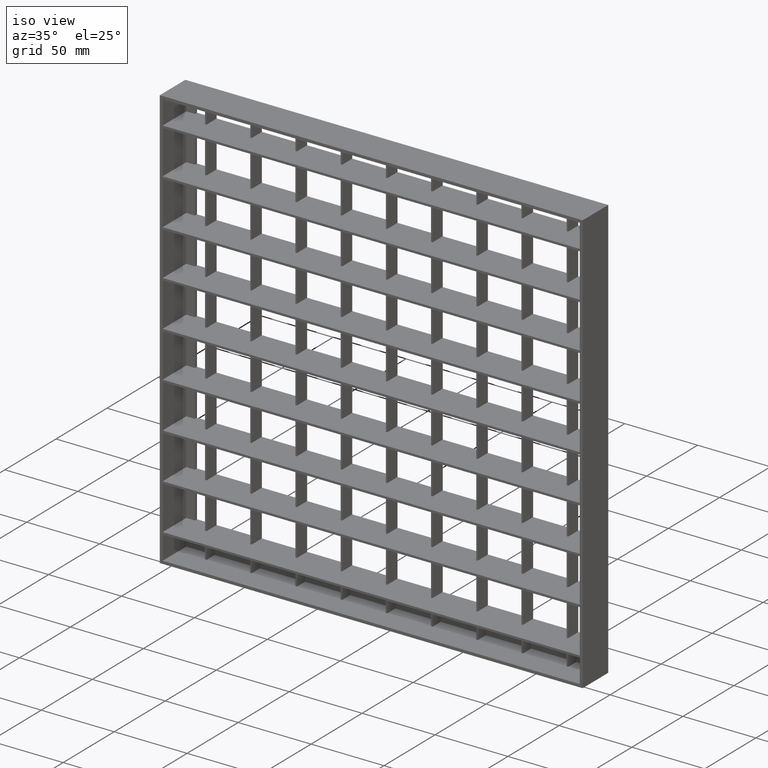
[diagram: clean part render]
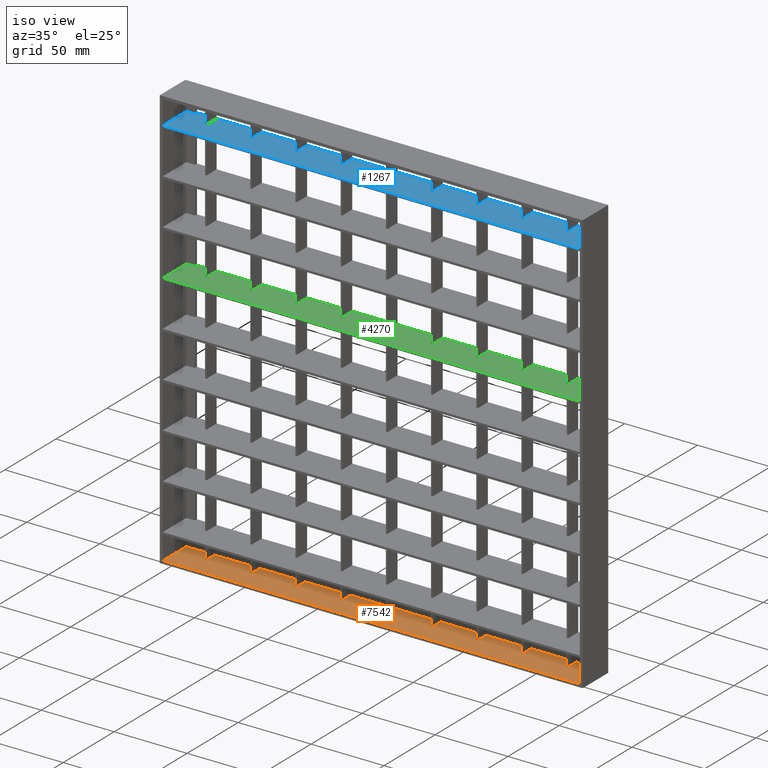
[diagram: same view with three faces highlighted in distinct colors, each labeled with its STEP entity id]
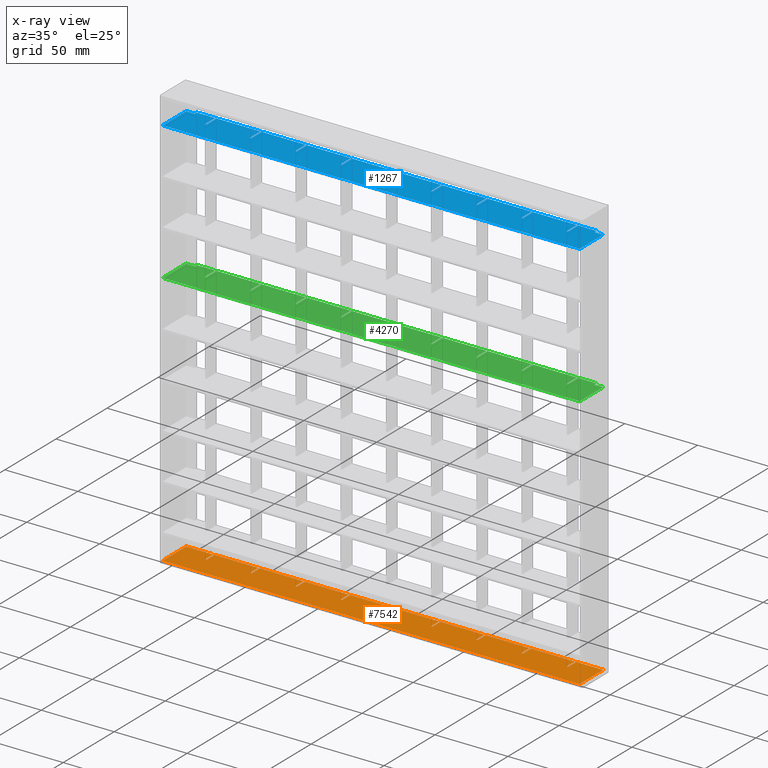
[diagram: x-ray of the same camera — body ghosted, the three highlighted faces saturated]
A machine part, iso view with three faces highlighted in distinct colors.
The next image is the same camera in x-ray (body ghosted, the three faces saturated) — at least one of them is partly hidden behind the body in this view.
Their STEP definitions:

[orange] entity #7542 — the highlighted planar face has unit normal (0, 0, -1).
#48 = CARTESIAN_POINT ( 'NONE',  ( 2.000000000000005300, 10.50000000000000500, -288.0000000000000000 ) ) ;
#63 = LINE ( 'NONE', #5985, #11075 ) ;
#68 = ORIENTED_EDGE ( 'NONE', *, *, #10498, .F. ) ;
#168 = LINE ( 'NONE', #3302, #4118 ) ;
#190 = EDGE_CURVE ( 'NONE', #15541, #11172, #265, .T. ) ;
#265 = LINE ( 'NONE', #5950, #11846 ) ;
#308 = VERTEX_POINT ( 'NONE', #3973 ) ;
#328 = CARTESIAN_POINT ( 'NONE',  ( 2.000000000000002700, -12.50000000000000000, -288.0000000000000600 ) ) ;
#363 = ORIENTED_EDGE ( 'NONE', *, *, #3663, .T. ) ;
#477 = CARTESIAN_POINT ( 'NONE',  ( 206.5000000000001100, 2.500000000000002200, -288.0000000000000600 ) ) ;
#554 = VERTEX_POINT ( 'NONE', #8031 ) ;
#582 = CARTESIAN_POINT ( 'NONE',  ( 2.000000000000005300, 10.50000000000000500, -288.0000000000000000 ) ) ;
#663 = VERTEX_POINT ( 'NONE', #9291 ) ;
#706 = VECTOR ( 'NONE', #13414, 1000.000000000000000 ) ;
#750 = LINE ( 'NONE', #8130, #2066 ) ;
#765 = DIRECTION ( 'NONE',  ( 1.000000000000000000, 0.0000000000000000000, 0.0000000000000000000 ) ) ;
#850 = CARTESIAN_POINT ( 'NONE',  ( 176.5000000000001100, 10.50000000000000500, -288.0000000000000000 ) ) ;
#912 = ORIENTED_EDGE ( 'NONE', *, *, #10672, .F. ) ;
#998 = DIRECTION ( 'NONE',  ( 1.000000000000000000, 0.0000000000000000000, 0.0000000000000000000 ) ) ;
#1021 = CARTESIAN_POINT ( 'NONE',  ( 288.0000000000000000, -12.50000000000000000, -288.0000000000000600 ) ) ;
#1050 = CARTESIAN_POINT ( 'NONE',  ( 2.000000000000005300, 10.50000000000000500, -288.0000000000000000 ) ) ;
#1078 = EDGE_CURVE ( 'NONE', #5176, #2622, #8304, .T. ) ;
#1119 = CARTESIAN_POINT ( 'NONE',  ( 207.5000000000001400, 2.500000000000001800, -288.0000000000000600 ) ) ;
#1143 = DIRECTION ( 'NONE',  ( 0.0000000000000000000, -1.000000000000000000, 0.0000000000000000000 ) ) ;
#1171 = CARTESIAN_POINT ( 'NONE',  ( 83.49999999999995700, 10.50000000000000500, -288.0000000000000600 ) ) ;
#1183 = DIRECTION ( 'NONE',  ( 0.0000000000000000000, 0.0000000000000000000, -1.000000000000000000 ) ) ;
#1244 = VECTOR ( 'NONE', #10914, 1000.000000000000000 ) ;
#1264 = LINE ( 'NONE', #10653, #7038 ) ;
#1292 = CARTESIAN_POINT ( 'NONE',  ( 21.49999999999996400, 2.500000000000002200, -288.0000000000000600 ) ) ;
#1344 = DIRECTION ( 'NONE',  ( 0.0000000000000000000, -1.000000000000000000, 0.0000000000000000000 ) ) ;
#1366 = EDGE_CURVE ( 'NONE', #2622, #10823, #6043, .T. ) ;
#1395 = LINE ( 'NONE', #2133, #10180 ) ;
#1459 = DIRECTION ( 'NONE',  ( -1.000000000000000000, 4.336808689942014300E-016, 0.0000000000000000000 ) ) ;
#1515 = ORIENTED_EDGE ( 'NONE', *, *, #12998, .T. ) ;
#1586 = VECTOR ( 'NONE', #5746, 1000.000000000000000 ) ;
#1634 = DIRECTION ( 'NONE',  ( -1.000000000000000000, 4.336808689942014300E-016, 0.0000000000000000000 ) ) ;
#1940 = ORIENTED_EDGE ( 'NONE', *, *, #10819, .F. ) ;
#1953 = CARTESIAN_POINT ( 'NONE',  ( 237.5000000000001100, 10.50000000000000500, -288.0000000000000000 ) ) ;
#2008 = EDGE_CURVE ( 'NONE', #10015, #6072, #13852, .T. ) ;
#2018 = VERTEX_POINT ( 'NONE', #14303 ) ;
#2066 = VECTOR ( 'NONE', #9280, 1000.000000000000000 ) ;
#2083 = DIRECTION ( 'NONE',  ( 1.000000000000000000, 0.0000000000000000000, 0.0000000000000000000 ) ) ;
#2099 = ORIENTED_EDGE ( 'NONE', *, *, #12970, .T. ) ;
#2113 = VECTOR ( 'NONE', #7270, 1000.000000000000000 ) ;
#2133 = CARTESIAN_POINT ( 'NONE',  ( 2.000000000000005300, 10.50000000000000500, -288.0000000000000000 ) ) ;
#2151 = CARTESIAN_POINT ( 'NONE',  ( 288.0000000000000000, -12.50000000000000000, -288.0000000000000600 ) ) ;
#2162 = VECTOR ( 'NONE', #7428, 1000.000000000000000 ) ;
#2171 = CARTESIAN_POINT ( 'NONE',  ( 2.000000000000005300, 10.50000000000000500, -288.0000000000000000 ) ) ;
#2178 = VECTOR ( 'NONE', #5060, 1000.000000000000000 ) ;
#2207 = DIRECTION ( 'NONE',  ( 0.0000000000000000000, -1.000000000000000000, 0.0000000000000000000 ) ) ;
#2275 = ORIENTED_EDGE ( 'NONE', *, *, #11550, .F. ) ;
#2374 = ORIENTED_EDGE ( 'NONE', *, *, #190, .F. ) ;
#2383 = VECTOR ( 'NONE', #1459, 1000.000000000000000 ) ;
#2412 = ORIENTED_EDGE ( 'NONE', *, *, #6168, .F. ) ;
#2414 = LINE ( 'NONE', #4910, #9690 ) ;
#2553 = VECTOR ( 'NONE', #3943, 1000.000000000000000 ) ;
#2600 = VERTEX_POINT ( 'NONE', #13997 ) ;
#2622 = VERTEX_POINT ( 'NONE', #6844 ) ;
#2767 = CARTESIAN_POINT ( 'NONE',  ( 268.5000000000001100, 10.50000000000000500, -288.0000000000000000 ) ) ;
#3084 = VERTEX_POINT ( 'NONE', #10038 ) ;
#3101 = LINE ( 'NONE', #4930, #2553 ) ;
#3148 = CARTESIAN_POINT ( 'NONE',  ( 145.4999999999999700, 12.50000000000000200, -288.0000000000000600 ) ) ;
#3207 = VERTEX_POINT ( 'NONE', #11257 ) ;
#3295 = CARTESIAN_POINT ( 'NONE',  ( 2.000000000000002700, -12.50000000000000000, -288.0000000000000600 ) ) ;
#3302 = CARTESIAN_POINT ( 'NONE',  ( 2.000000000000005300, 10.50000000000000500, -288.0000000000000000 ) ) ;
#3316 = LINE ( 'NONE', #8105, #7604 ) ;
#3388 = LINE ( 'NONE', #11080, #11591 ) ;
#3459 = ORIENTED_EDGE ( 'NONE', *, *, #1078, .T. ) ;
#3509 = DIRECTION ( 'NONE',  ( 1.000000000000000000, 0.0000000000000000000, 0.0000000000000000000 ) ) ;
#3524 = ORIENTED_EDGE ( 'NONE', *, *, #14697, .T. ) ;
#3652 = DIRECTION ( 'NONE',  ( 0.0000000000000000000, -1.000000000000000000, 0.0000000000000000000 ) ) ;
#3663 = EDGE_CURVE ( 'NONE', #2600, #6100, #8624, .T. ) ;
#3783 = VECTOR ( 'NONE', #11379, 1000.000000000000000 ) ;
#3835 = CARTESIAN_POINT ( 'NONE',  ( 82.49999999999995700, 2.500000000000001800, -288.0000000000000600 ) ) ;
#3905 = LINE ( 'NONE', #12095, #706 ) ;
#3920 = CARTESIAN_POINT ( 'NONE',  ( 145.4999999999999700, 10.50000000000000500, -288.0000000000000600 ) ) ;
#3929 = CARTESIAN_POINT ( 'NONE',  ( 113.4999999999999600, 2.500000000000001800, -288.0000000000000600 ) ) ;
#3943 = DIRECTION ( 'NONE',  ( 0.0000000000000000000, 1.000000000000000000, 0.0000000000000000000 ) ) ;
#3966 = ORIENTED_EDGE ( 'NONE', *, *, #12826, .F. ) ;
#3973 = CARTESIAN_POINT ( 'NONE',  ( 114.4999999999999600, 10.50000000000000500, -288.0000000000000600 ) ) ;
#4118 = VECTOR ( 'NONE', #998, 1000.000000000000000 ) ;
#4154 = VECTOR ( 'NONE', #1143, 1000.000000000000000 ) ;
#4243 = DIRECTION ( 'NONE',  ( 1.000000000000000000, 0.0000000000000000000, 0.0000000000000000000 ) ) ;
#4382 = VECTOR ( 'NONE', #7558, 1000.000000000000000 ) ;
#4393 = VECTOR ( 'NONE', #3652, 1000.000000000000000 ) ;
#4402 = DIRECTION ( 'NONE',  ( 0.0000000000000000000, -1.000000000000000000, 0.0000000000000000000 ) ) ;
#4416 = CARTESIAN_POINT ( 'NONE',  ( 268.5000000000001100, 2.500000000000002200, -288.0000000000000600 ) ) ;
#4419 = VERTEX_POINT ( 'NONE', #4766 ) ;
#4490 = LINE ( 'NONE', #10291, #10460 ) ;
#4608 = EDGE_CURVE ( 'NONE', #8894, #7681, #3905, .T. ) ;
#4634 = ORIENTED_EDGE ( 'NONE', *, *, #6876, .F. ) ;
#4667 = CARTESIAN_POINT ( 'NONE',  ( 21.49999999999996400, 12.50000000000000200, -288.0000000000000600 ) ) ;
#4757 = LINE ( 'NONE', #8764, #4382 ) ;
#4766 = CARTESIAN_POINT ( 'NONE',  ( 82.49999999999995700, 2.500000000000001800, -288.0000000000000600 ) ) ;
#4807 = ORIENTED_EDGE ( 'NONE', *, *, #12434, .F. ) ;
#4811 = DIRECTION ( 'NONE',  ( 0.0000000000000000000, 1.000000000000000000, 0.0000000000000000000 ) ) ;
#4832 = ORIENTED_EDGE ( 'NONE', *, *, #15357, .F. ) ;
#4854 = CARTESIAN_POINT ( 'NONE',  ( 175.5000000000001100, 2.500000000000002200, -288.0000000000000600 ) ) ;
#4910 = CARTESIAN_POINT ( 'NONE',  ( 2.000000000000002700, -12.50000000000000000, -288.0000000000000600 ) ) ;
#4930 = CARTESIAN_POINT ( 'NONE',  ( 268.5000000000001100, 12.50000000000000200, -288.0000000000000600 ) ) ;
#4944 = EDGE_CURVE ( 'NONE', #11036, #10018, #8387, .T. ) ;
#4994 = VECTOR ( 'NONE', #7012, 1000.000000000000000 ) ;
#5022 = VERTEX_POINT ( 'NONE', #13150 ) ;
#5032 = CARTESIAN_POINT ( 'NONE',  ( 52.49999999999996400, 2.500000000000002200, -288.0000000000000600 ) ) ;
#5060 = DIRECTION ( 'NONE',  ( 0.0000000000000000000, 1.000000000000000000, 0.0000000000000000000 ) ) ;
#5176 = VERTEX_POINT ( 'NONE', #7467 ) ;
#5198 = VECTOR ( 'NONE', #4811, 1000.000000000000000 ) ;
#5235 = DIRECTION ( 'NONE',  ( 0.0000000000000000000, -1.000000000000000000, 0.0000000000000000000 ) ) ;
#5375 = VERTEX_POINT ( 'NONE', #6464 ) ;
#5377 = LINE ( 'NONE', #582, #8197 ) ;
#5480 = CARTESIAN_POINT ( 'NONE',  ( 2.000000000000005300, 10.50000000000000500, -288.0000000000000000 ) ) ;
#5496 = VECTOR ( 'NONE', #6675, 1000.000000000000000 ) ;
#5519 = ORIENTED_EDGE ( 'NONE', *, *, #8309, .F. ) ;
#5527 = VECTOR ( 'NONE', #1634, 1000.000000000000000 ) ;
#5538 = LINE ( 'NONE', #14163, #4994 ) ;
#5584 = LINE ( 'NONE', #8519, #5774 ) ;
#5686 = ORIENTED_EDGE ( 'NONE', *, *, #12723, .F. ) ;
#5693 = VECTOR ( 'NONE', #765, 1000.000000000000000 ) ;
#5696 = DIRECTION ( 'NONE',  ( 0.0000000000000000000, 1.000000000000000000, 0.0000000000000000000 ) ) ;
#5746 = DIRECTION ( 'NONE',  ( 0.0000000000000000000, 1.000000000000000000, 0.0000000000000000000 ) ) ;
#5752 = VECTOR ( 'NONE', #14153, 1000.000000000000000 ) ;
#5774 = VECTOR ( 'NONE', #12094, 1000.000000000000000 ) ;
#5874 = LINE ( 'NONE', #6195, #10730 ) ;
#5921 = VERTEX_POINT ( 'NONE', #328 ) ;
#5950 = CARTESIAN_POINT ( 'NONE',  ( 145.4999999999999700, 2.500000000000002200, -288.0000000000000600 ) ) ;
#5969 = CARTESIAN_POINT ( 'NONE',  ( 52.49999999999996400, 10.50000000000000500, -288.0000000000000600 ) ) ;
#5985 = CARTESIAN_POINT ( 'NONE',  ( 83.49999999999995700, 2.500000000000002200, -288.0000000000000600 ) ) ;
#5991 = ORIENTED_EDGE ( 'NONE', *, *, #8219, .F. ) ;
#6043 = LINE ( 'NONE', #14897, #14856 ) ;
#6046 = CARTESIAN_POINT ( 'NONE',  ( 83.49999999999995700, 12.50000000000000200, -288.0000000000000600 ) ) ;
#6050 = DIRECTION ( 'NONE',  ( 1.000000000000000000, 4.336808689942014300E-016, 0.0000000000000000000 ) ) ;
#6072 = VERTEX_POINT ( 'NONE', #10568 ) ;
#6100 = VERTEX_POINT ( 'NONE', #4416 ) ;
#6135 = ORIENTED_EDGE ( 'NONE', *, *, #13516, .F. ) ;
#6168 = EDGE_CURVE ( 'NONE', #5375, #7509, #5538, .T. ) ;
#6195 = CARTESIAN_POINT ( 'NONE',  ( 51.49999999999996400, 2.500000000000001800, -288.0000000000000600 ) ) ;
#6248 = EDGE_LOOP ( 'NONE', ( #14867, #363, #7407, #5686, #15463, #3459, #10153, #5519, #9227, #3524, #7619, #4807, #14308, #1515, #2099, #8692, #10299, #2374, #9700, #912, #68, #13363, #4832, #14568, #14555, #10434, #6135, #3966, #12278, #1940, #10964, #11851, #2275, #2412, #13218, #7484, #4634, #10795, #15410, #5991 ) ) ;
#6255 = LINE ( 'NONE', #9665, #4393 ) ;
#6276 = CARTESIAN_POINT ( 'NONE',  ( 207.5000000000001400, 10.50000000000000500, -288.0000000000000000 ) ) ;
#6368 = EDGE_CURVE ( 'NONE', #6100, #11810, #3101, .T. ) ;
#6464 = CARTESIAN_POINT ( 'NONE',  ( 20.49999999999996400, 2.500000000000001800, -288.0000000000000600 ) ) ;
#6579 = CARTESIAN_POINT ( 'NONE',  ( 83.49999999999995700, 2.500000000000002200, -288.0000000000000600 ) ) ;
#6675 = DIRECTION ( 'NONE',  ( -1.000000000000000000, 4.336808689942014300E-016, 0.0000000000000000000 ) ) ;
#6733 = VERTEX_POINT ( 'NONE', #13981 ) ;
#6785 = DIRECTION ( 'NONE',  ( 1.000000000000000000, 4.336808689942014300E-016, 0.0000000000000000000 ) ) ;
#6807 = LINE ( 'NONE', #5480, #5693 ) ;
#6828 = CARTESIAN_POINT ( 'NONE',  ( 237.5000000000001400, 2.500000000000002200, -288.0000000000000600 ) ) ;
#6844 = CARTESIAN_POINT ( 'NONE',  ( 237.5000000000001400, 2.500000000000002200, -288.0000000000000600 ) ) ;
#6871 = CARTESIAN_POINT ( 'NONE',  ( 144.4999999999999700, 2.500000000000001800, -288.0000000000000600 ) ) ;
#6876 = EDGE_CURVE ( 'NONE', #5921, #8894, #10359, .T. ) ;
#6942 = EDGE_CURVE ( 'NONE', #7233, #2600, #6255, .T. ) ;
#7012 = DIRECTION ( 'NONE',  ( 1.000000000000000000, 4.336808689942014300E-016, 0.0000000000000000000 ) ) ;
#7038 = VECTOR ( 'NONE', #10601, 1000.000000000000000 ) ;
#7233 = VERTEX_POINT ( 'NONE', #12537 ) ;
#7257 = LINE ( 'NONE', #6046, #5198 ) ;
#7270 = DIRECTION ( 'NONE',  ( 0.0000000000000000000, 1.000000000000000000, 0.0000000000000000000 ) ) ;
#7294 = DIRECTION ( 'NONE',  ( -1.000000000000000000, 0.0000000000000000000, -0.0000000000000000000 ) ) ;
#7338 = VECTOR ( 'NONE', #14266, 1000.000000000000000 ) ;
#7407 = ORIENTED_EDGE ( 'NONE', *, *, #6368, .T. ) ;
#7428 = DIRECTION ( 'NONE',  ( 0.0000000000000000000, -1.000000000000000000, 0.0000000000000000000 ) ) ;
#7441 = VERTEX_POINT ( 'NONE', #12914 ) ;
#7467 = CARTESIAN_POINT ( 'NONE',  ( 238.5000000000001700, 2.500000000000002200, -288.0000000000000600 ) ) ;
#7484 = ORIENTED_EDGE ( 'NONE', *, *, #4608, .F. ) ;
#7503 = EDGE_CURVE ( 'NONE', #4419, #9470, #63, .T. ) ;
#7509 = VERTEX_POINT ( 'NONE', #1292 ) ;
#7542 = ADVANCED_FACE ( 'NONE', ( #14857 ), #10742, .F. ) ;
#7558 = DIRECTION ( 'NONE',  ( 0.0000000000000000000, -1.000000000000000000, 0.0000000000000000000 ) ) ;
#7604 = VECTOR ( 'NONE', #3509, 1000.000000000000000 ) ;
#7619 = ORIENTED_EDGE ( 'NONE', *, *, #7870, .T. ) ;
#7681 = VERTEX_POINT ( 'NONE', #13994 ) ;
#7785 = LINE ( 'NONE', #477, #5527 ) ;
#7870 = EDGE_CURVE ( 'NONE', #663, #8315, #11617, .T. ) ;
#7891 = EDGE_CURVE ( 'NONE', #14175, #8330, #10518, .T. ) ;
#8031 = CARTESIAN_POINT ( 'NONE',  ( 114.4999999999999600, 2.500000000000002200, -288.0000000000000600 ) ) ;
#8036 = LINE ( 'NONE', #4667, #10258 ) ;
#8105 = CARTESIAN_POINT ( 'NONE',  ( 2.000000000000005300, 10.50000000000000500, -288.0000000000000000 ) ) ;
#8130 = CARTESIAN_POINT ( 'NONE',  ( 52.49999999999996400, 2.500000000000002200, -288.0000000000000600 ) ) ;
#8197 = VECTOR ( 'NONE', #4243, 1000.000000000000000 ) ;
#8219 = EDGE_CURVE ( 'NONE', #7233, #6733, #1395, .T. ) ;
#8301 = CARTESIAN_POINT ( 'NONE',  ( 176.5000000000001100, 2.500000000000001800, -288.0000000000000600 ) ) ;
#8304 = LINE ( 'NONE', #6828, #5496 ) ;
#8309 = EDGE_CURVE ( 'NONE', #14531, #10823, #6807, .T. ) ;
#8315 = VERTEX_POINT ( 'NONE', #9092 ) ;
#8330 = VERTEX_POINT ( 'NONE', #12757 ) ;
#8387 = LINE ( 'NONE', #1050, #5752 ) ;
#8448 = CARTESIAN_POINT ( 'NONE',  ( 268.5000000000001100, 2.500000000000002200, -288.0000000000000600 ) ) ;
#8495 = EDGE_CURVE ( 'NONE', #3084, #12022, #5874, .T. ) ;
#8505 = DIRECTION ( 'NONE',  ( 1.000000000000000000, 4.336808689942014300E-016, 0.0000000000000000000 ) ) ;
#8519 = CARTESIAN_POINT ( 'NONE',  ( 52.49999999999996400, 12.50000000000000200, -288.0000000000000600 ) ) ;
#8555 = VERTEX_POINT ( 'NONE', #4854 ) ;
#8611 = CARTESIAN_POINT ( 'NONE',  ( 175.5000000000001100, 12.50000000000000200, -288.0000000000000600 ) ) ;
#8621 = EDGE_CURVE ( 'NONE', #5022, #5176, #4757, .T. ) ;
#8624 = LINE ( 'NONE', #8448, #9010 ) ;
#8692 = ORIENTED_EDGE ( 'NONE', *, *, #7891, .F. ) ;
#8764 = CARTESIAN_POINT ( 'NONE',  ( 238.5000000000001700, 2.500000000000001800, -288.0000000000000600 ) ) ;
#8800 = CARTESIAN_POINT ( 'NONE',  ( 207.5000000000001400, 2.500000000000001800, -288.0000000000000600 ) ) ;
#8828 = CARTESIAN_POINT ( 'NONE',  ( 175.5000000000001100, 2.500000000000002200, -288.0000000000000600 ) ) ;
#8894 = VERTEX_POINT ( 'NONE', #2171 ) ;
#9010 = VECTOR ( 'NONE', #11821, 1000.000000000000000 ) ;
#9032 = VERTEX_POINT ( 'NONE', #1021 ) ;
#9092 = CARTESIAN_POINT ( 'NONE',  ( 206.5000000000001100, 10.50000000000000500, -288.0000000000000000 ) ) ;
#9227 = ORIENTED_EDGE ( 'NONE', *, *, #9358, .T. ) ;
#9280 = DIRECTION ( 'NONE',  ( 1.000000000000000000, 4.336808689942014300E-016, 0.0000000000000000000 ) ) ;
#9291 = CARTESIAN_POINT ( 'NONE',  ( 206.5000000000001100, 2.500000000000002200, -288.0000000000000600 ) ) ;
#9358 = EDGE_CURVE ( 'NONE', #14531, #10162, #10512, .T. ) ;
#9457 = VECTOR ( 'NONE', #12339, 1000.000000000000000 ) ;
#9470 = VERTEX_POINT ( 'NONE', #6579 ) ;
#9489 = LINE ( 'NONE', #8611, #2178 ) ;
#9553 = CARTESIAN_POINT ( 'NONE',  ( 2.000000000000002700, -12.50000000000000000, -288.0000000000000600 ) ) ;
#9658 = VECTOR ( 'NONE', #4402, 1000.000000000000000 ) ;
#9665 = CARTESIAN_POINT ( 'NONE',  ( 269.5000000000001100, 2.500000000000001800, -288.0000000000000600 ) ) ;
#9690 = VECTOR ( 'NONE', #14406, 1000.000000000000000 ) ;
#9700 = ORIENTED_EDGE ( 'NONE', *, *, #12634, .F. ) ;
#9746 = LINE ( 'NONE', #11429, #9933 ) ;
#9933 = VECTOR ( 'NONE', #15179, 1000.000000000000000 ) ;
#10015 = VERTEX_POINT ( 'NONE', #850 ) ;
#10018 = VERTEX_POINT ( 'NONE', #10418 ) ;
#10034 = LINE ( 'NONE', #8828, #2383 ) ;
#10038 = CARTESIAN_POINT ( 'NONE',  ( 51.49999999999996400, 10.50000000000000500, -288.0000000000000600 ) ) ;
#10153 = ORIENTED_EDGE ( 'NONE', *, *, #1366, .T. ) ;
#10162 = VERTEX_POINT ( 'NONE', #1119 ) ;
#10180 = VECTOR ( 'NONE', #2083, 1000.000000000000000 ) ;
#10257 = DIRECTION ( 'NONE',  ( 1.000000000000000000, 0.0000000000000000000, 0.0000000000000000000 ) ) ;
#10258 = VECTOR ( 'NONE', #5696, 1000.000000000000000 ) ;
#10291 = CARTESIAN_POINT ( 'NONE',  ( 114.4999999999999600, 2.500000000000002200, -288.0000000000000600 ) ) ;
#10299 = ORIENTED_EDGE ( 'NONE', *, *, #10406, .F. ) ;
#10359 = LINE ( 'NONE', #3295, #1586 ) ;
#10406 = EDGE_CURVE ( 'NONE', #11172, #14175, #13846, .T. ) ;
#10418 = CARTESIAN_POINT ( 'NONE',  ( 113.4999999999999600, 10.50000000000000500, -288.0000000000000600 ) ) ;
#10434 = ORIENTED_EDGE ( 'NONE', *, *, #7503, .F. ) ;
#10460 = VECTOR ( 'NONE', #6785, 1000.000000000000000 ) ;
#10498 = EDGE_CURVE ( 'NONE', #554, #308, #9746, .T. ) ;
#10512 = LINE ( 'NONE', #8800, #12171 ) ;
#10518 = LINE ( 'NONE', #48, #7338 ) ;
#10568 = CARTESIAN_POINT ( 'NONE',  ( 176.5000000000001100, 2.500000000000001300, -288.0000000000000600 ) ) ;
#10601 = DIRECTION ( 'NONE',  ( 0.0000000000000000000, -1.000000000000000000, 0.0000000000000000000 ) ) ;
#10631 = AXIS2_PLACEMENT_3D ( 'NONE', #9553, #1183, #7294 ) ;
#10653 = CARTESIAN_POINT ( 'NONE',  ( 144.4999999999999700, 2.500000000000001800, -288.0000000000000600 ) ) ;
#10672 = EDGE_CURVE ( 'NONE', #308, #2018, #3388, .T. ) ;
#10714 = CARTESIAN_POINT ( 'NONE',  ( 206.5000000000001100, 12.50000000000000200, -288.0000000000000600 ) ) ;
#10730 = VECTOR ( 'NONE', #1344, 1000.000000000000000 ) ;
#10742 = PLANE ( 'NONE',  #10631 ) ;
#10795 = ORIENTED_EDGE ( 'NONE', *, *, #14049, .T. ) ;
#10819 = EDGE_CURVE ( 'NONE', #12022, #12335, #750, .T. ) ;
#10823 = VERTEX_POINT ( 'NONE', #1953 ) ;
#10914 = DIRECTION ( 'NONE',  ( 1.000000000000000000, 0.0000000000000000000, 0.0000000000000000000 ) ) ;
#10964 = ORIENTED_EDGE ( 'NONE', *, *, #8495, .F. ) ;
#11036 = VERTEX_POINT ( 'NONE', #1171 ) ;
#11062 = DIRECTION ( 'NONE',  ( 0.0000000000000000000, 1.000000000000000000, 0.0000000000000000000 ) ) ;
#11075 = VECTOR ( 'NONE', #8505, 1000.000000000000000 ) ;
#11080 = CARTESIAN_POINT ( 'NONE',  ( 2.000000000000005300, 10.50000000000000500, -288.0000000000000000 ) ) ;
#11172 = VERTEX_POINT ( 'NONE', #14651 ) ;
#11257 = CARTESIAN_POINT ( 'NONE',  ( 82.49999999999995700, 10.50000000000000500, -288.0000000000000600 ) ) ;
#11371 = EDGE_CURVE ( 'NONE', #7441, #554, #4490, .T. ) ;
#11379 = DIRECTION ( 'NONE',  ( 0.0000000000000000000, 1.000000000000000000, 0.0000000000000000000 ) ) ;
#11429 = CARTESIAN_POINT ( 'NONE',  ( 114.4999999999999600, 12.50000000000000200, -288.0000000000000600 ) ) ;
#11473 = LINE ( 'NONE', #3835, #2162 ) ;
#11483 = EDGE_CURVE ( 'NONE', #6733, #9032, #12861, .T. ) ;
#11550 = EDGE_CURVE ( 'NONE', #7509, #13583, #8036, .T. ) ;
#11570 = EDGE_CURVE ( 'NONE', #13583, #3084, #168, .T. ) ;
#11579 = CARTESIAN_POINT ( 'NONE',  ( 20.49999999999996400, 2.500000000000001800, -288.0000000000000600 ) ) ;
#11591 = VECTOR ( 'NONE', #10257, 1000.000000000000000 ) ;
#11617 = LINE ( 'NONE', #10714, #2113 ) ;
#11740 = VECTOR ( 'NONE', #2207, 1000.000000000000000 ) ;
#11746 = CARTESIAN_POINT ( 'NONE',  ( 51.49999999999996400, 2.500000000000001800, -288.0000000000000600 ) ) ;
#11810 = VERTEX_POINT ( 'NONE', #2767 ) ;
#11821 = DIRECTION ( 'NONE',  ( -1.000000000000000000, 4.336808689942014300E-016, 0.0000000000000000000 ) ) ;
#11826 = EDGE_CURVE ( 'NONE', #12335, #12111, #5584, .T. ) ;
#11846 = VECTOR ( 'NONE', #6050, 1000.000000000000000 ) ;
#11851 = ORIENTED_EDGE ( 'NONE', *, *, #11570, .F. ) ;
#12022 = VERTEX_POINT ( 'NONE', #11746 ) ;
#12094 = DIRECTION ( 'NONE',  ( 0.0000000000000000000, 1.000000000000000000, 0.0000000000000000000 ) ) ;
#12095 = CARTESIAN_POINT ( 'NONE',  ( 2.000000000000005300, 10.50000000000000500, -288.0000000000000000 ) ) ;
#12111 = VERTEX_POINT ( 'NONE', #5969 ) ;
#12171 = VECTOR ( 'NONE', #5235, 1000.000000000000000 ) ;
#12278 = ORIENTED_EDGE ( 'NONE', *, *, #11826, .F. ) ;
#12335 = VERTEX_POINT ( 'NONE', #5032 ) ;
#12339 = DIRECTION ( 'NONE',  ( 0.0000000000000000000, -1.000000000000000000, 0.0000000000000000000 ) ) ;
#12434 = EDGE_CURVE ( 'NONE', #10015, #8315, #5377, .T. ) ;
#12509 = CARTESIAN_POINT ( 'NONE',  ( 21.49999999999996400, 10.50000000000000500, -288.0000000000000600 ) ) ;
#12537 = CARTESIAN_POINT ( 'NONE',  ( 269.5000000000001100, 10.50000000000000500, -288.0000000000000000 ) ) ;
#12634 = EDGE_CURVE ( 'NONE', #2018, #15541, #1264, .T. ) ;
#12723 = EDGE_CURVE ( 'NONE', #5022, #11810, #3316, .T. ) ;
#12757 = CARTESIAN_POINT ( 'NONE',  ( 175.5000000000001100, 10.50000000000000500, -288.0000000000000000 ) ) ;
#12826 = EDGE_CURVE ( 'NONE', #12111, #3207, #14331, .T. ) ;
#12861 = LINE ( 'NONE', #2151, #11740 ) ;
#12914 = CARTESIAN_POINT ( 'NONE',  ( 113.4999999999999600, 2.500000000000001800, -288.0000000000000600 ) ) ;
#12970 = EDGE_CURVE ( 'NONE', #8555, #8330, #9489, .T. ) ;
#12998 = EDGE_CURVE ( 'NONE', #6072, #8555, #10034, .T. ) ;
#13150 = CARTESIAN_POINT ( 'NONE',  ( 238.5000000000001700, 10.50000000000000500, -288.0000000000000000 ) ) ;
#13218 = ORIENTED_EDGE ( 'NONE', *, *, #14910, .F. ) ;
#13363 = ORIENTED_EDGE ( 'NONE', *, *, #11371, .F. ) ;
#13414 = DIRECTION ( 'NONE',  ( 1.000000000000000000, 0.0000000000000000000, 0.0000000000000000000 ) ) ;
#13516 = EDGE_CURVE ( 'NONE', #3207, #4419, #11473, .T. ) ;
#13583 = VERTEX_POINT ( 'NONE', #12509 ) ;
#13846 = LINE ( 'NONE', #3148, #3783 ) ;
#13852 = LINE ( 'NONE', #8301, #4154 ) ;
#13981 = CARTESIAN_POINT ( 'NONE',  ( 287.9999999999999400, 10.50000000000000500, -287.9999999999999400 ) ) ;
#13994 = CARTESIAN_POINT ( 'NONE',  ( 20.49999999999996400, 10.50000000000000500, -288.0000000000000600 ) ) ;
#13997 = CARTESIAN_POINT ( 'NONE',  ( 269.5000000000001100, 2.500000000000002700, -288.0000000000000600 ) ) ;
#14048 = EDGE_CURVE ( 'NONE', #9470, #11036, #7257, .T. ) ;
#14049 = EDGE_CURVE ( 'NONE', #5921, #9032, #2414, .T. ) ;
#14153 = DIRECTION ( 'NONE',  ( 1.000000000000000000, 0.0000000000000000000, 0.0000000000000000000 ) ) ;
#14163 = CARTESIAN_POINT ( 'NONE',  ( 21.49999999999996400, 2.500000000000002200, -288.0000000000000600 ) ) ;
#14175 = VERTEX_POINT ( 'NONE', #3920 ) ;
#14266 = DIRECTION ( 'NONE',  ( 1.000000000000000000, 0.0000000000000000000, 0.0000000000000000000 ) ) ;
#14303 = CARTESIAN_POINT ( 'NONE',  ( 144.4999999999999700, 10.50000000000000500, -288.0000000000000600 ) ) ;
#14308 = ORIENTED_EDGE ( 'NONE', *, *, #2008, .T. ) ;
#14331 = LINE ( 'NONE', #14520, #1244 ) ;
#14406 = DIRECTION ( 'NONE',  ( 1.000000000000000000, 0.0000000000000000000, 0.0000000000000000000 ) ) ;
#14520 = CARTESIAN_POINT ( 'NONE',  ( 2.000000000000005300, 10.50000000000000500, -288.0000000000000000 ) ) ;
#14531 = VERTEX_POINT ( 'NONE', #6276 ) ;
#14555 = ORIENTED_EDGE ( 'NONE', *, *, #14048, .F. ) ;
#14568 = ORIENTED_EDGE ( 'NONE', *, *, #4944, .F. ) ;
#14651 = CARTESIAN_POINT ( 'NONE',  ( 145.4999999999999700, 2.500000000000002200, -288.0000000000000600 ) ) ;
#14697 = EDGE_CURVE ( 'NONE', #10162, #663, #7785, .T. ) ;
#14699 = LINE ( 'NONE', #11579, #9658 ) ;
#14856 = VECTOR ( 'NONE', #11062, 1000.000000000000000 ) ;
#14857 = FACE_OUTER_BOUND ( 'NONE', #6248, .T. ) ;
#14867 = ORIENTED_EDGE ( 'NONE', *, *, #6942, .T. ) ;
#14897 = CARTESIAN_POINT ( 'NONE',  ( 237.5000000000001400, 12.50000000000000200, -288.0000000000000600 ) ) ;
#14910 = EDGE_CURVE ( 'NONE', #7681, #5375, #14699, .T. ) ;
#15179 = DIRECTION ( 'NONE',  ( 0.0000000000000000000, 1.000000000000000000, 0.0000000000000000000 ) ) ;
#15357 = EDGE_CURVE ( 'NONE', #10018, #7441, #15451, .T. ) ;
#15410 = ORIENTED_EDGE ( 'NONE', *, *, #11483, .F. ) ;
#15451 = LINE ( 'NONE', #3929, #9457 ) ;
#15463 = ORIENTED_EDGE ( 'NONE', *, *, #8621, .T. ) ;
#15541 = VERTEX_POINT ( 'NONE', #6871 ) ;

[blue] entity #1267 — the highlighted planar face has unit normal (0, 0, 1).
#19 = ORIENTED_EDGE ( 'NONE', *, *, #15448, .T. ) ;
#56 = DIRECTION ( 'NONE',  ( -1.000000000000000000, 4.336808689942014300E-016, 0.0000000000000000000 ) ) ;
#80 = EDGE_CURVE ( 'NONE', #8635, #14537, #1597, .T. ) ;
#133 = VECTOR ( 'NONE', #11041, 1000.000000000000000 ) ;
#185 = CARTESIAN_POINT ( 'NONE',  ( 144.4999999999999700, -12.49999999999987700, -18.25000000000037700 ) ) ;
#193 = CARTESIAN_POINT ( 'NONE',  ( 21.49999999999996400, -12.49999999999987700, -18.25000000000037700 ) ) ;
#204 = LINE ( 'NONE', #9508, #1893 ) ;
#299 = DIRECTION ( 'NONE',  ( -0.0000000000000000000, 1.000000000000000000, 0.0000000000000000000 ) ) ;
#427 = VERTEX_POINT ( 'NONE', #5258 ) ;
#442 = LINE ( 'NONE', #185, #7177 ) ;
#483 = LINE ( 'NONE', #8810, #8742 ) ;
#500 = VECTOR ( 'NONE', #12448, 1000.000000000000000 ) ;
#512 = CARTESIAN_POINT ( 'NONE',  ( 52.49999999999993600, -12.49999999999987700, -18.25000000000037700 ) ) ;
#514 = CARTESIAN_POINT ( 'NONE',  ( 145.4999999999999700, -12.49999999999987700, -18.25000000000037700 ) ) ;
#527 = ORIENTED_EDGE ( 'NONE', *, *, #8497, .F. ) ;
#534 = VERTEX_POINT ( 'NONE', #4436 ) ;
#552 = ORIENTED_EDGE ( 'NONE', *, *, #12170, .F. ) ;
#585 = CARTESIAN_POINT ( 'NONE',  ( 176.5000000000001100, 12.50000000000000200, -18.25000000000037700 ) ) ;
#624 = VECTOR ( 'NONE', #11737, 1000.000000000000000 ) ;
#712 = VERTEX_POINT ( 'NONE', #11814 ) ;
#720 = CARTESIAN_POINT ( 'NONE',  ( 206.5000000000001100, 2.500000000000002200, -18.25000000000037700 ) ) ;
#728 = VERTEX_POINT ( 'NONE', #8196 ) ;
#749 = VERTEX_POINT ( 'NONE', #1026 ) ;
#930 = EDGE_CURVE ( 'NONE', #9081, #749, #12549, .T. ) ;
#1026 = CARTESIAN_POINT ( 'NONE',  ( 83.49999999999995700, 2.500000000000002200, -18.25000000000037700 ) ) ;
#1066 = LINE ( 'NONE', #2941, #13388 ) ;
#1228 = VECTOR ( 'NONE', #9046, 1000.000000000000000 ) ;
#1267 = ADVANCED_FACE ( 'NONE', ( #11070 ), #1444, .T. ) ;
#1311 = CARTESIAN_POINT ( 'NONE',  ( 114.4999999999999600, 12.50000000000006400, -18.25000000000037700 ) ) ;
#1317 = VERTEX_POINT ( 'NONE', #12324 ) ;
#1398 = VERTEX_POINT ( 'NONE', #12245 ) ;
#1444 = PLANE ( 'NONE',  #8200 ) ;
#1488 = EDGE_CURVE ( 'NONE', #12179, #10459, #11815, .T. ) ;
#1522 = LINE ( 'NONE', #8872, #8836 ) ;
#1535 = VERTEX_POINT ( 'NONE', #2411 ) ;
#1597 = LINE ( 'NONE', #12982, #10008 ) ;
#1608 = ORIENTED_EDGE ( 'NONE', *, *, #6778, .T. ) ;
#1612 = DIRECTION ( 'NONE',  ( 1.000000000000000000, 4.336808689942014300E-016, -0.0000000000000000000 ) ) ;
#1687 = DIRECTION ( 'NONE',  ( 0.0000000000000000000, -1.000000000000000000, 0.0000000000000000000 ) ) ;
#1739 = CARTESIAN_POINT ( 'NONE',  ( 82.49999999999995700, -12.49999999999987700, -18.25000000000037700 ) ) ;
#1759 = EDGE_CURVE ( 'NONE', #9532, #14190, #10326, .T. ) ;
#1775 = CARTESIAN_POINT ( 'NONE',  ( 113.4999999999999600, 12.50000000000000200, -18.25000000000037700 ) ) ;
#1893 = VECTOR ( 'NONE', #11877, 1000.000000000000000 ) ;
#1924 = CARTESIAN_POINT ( 'NONE',  ( 7.999999999999994700, 12.50000000000000500, -18.25000000000040500 ) ) ;
#2006 = LINE ( 'NONE', #9538, #5757 ) ;
#2012 = EDGE_CURVE ( 'NONE', #13030, #14537, #14239, .T. ) ;
#2024 = CARTESIAN_POINT ( 'NONE',  ( 207.5000000000001400, -12.49999999999987700, -18.25000000000037700 ) ) ;
#2069 = ORIENTED_EDGE ( 'NONE', *, *, #13590, .F. ) ;
#2155 = ORIENTED_EDGE ( 'NONE', *, *, #2654, .F. ) ;
#2313 = VECTOR ( 'NONE', #8791, 1000.000000000000000 ) ;
#2406 = DIRECTION ( 'NONE',  ( 0.0000000000000000000, -1.000000000000000000, 0.0000000000000000000 ) ) ;
#2411 = CARTESIAN_POINT ( 'NONE',  ( 144.4999999999999700, 2.500000000000001800, -18.25000000000037700 ) ) ;
#2446 = CARTESIAN_POINT ( 'NONE',  ( 313.0449595727364500, 12.50000000000012400, -18.25000000000037700 ) ) ;
#2451 = EDGE_CURVE ( 'NONE', #1398, #7900, #14225, .T. ) ;
#2548 = DIRECTION ( 'NONE',  ( -1.000000000000000000, -3.061616997868382600E-016, 0.0000000000000000000 ) ) ;
#2576 = ORIENTED_EDGE ( 'NONE', *, *, #3684, .T. ) ;
#2579 = DIRECTION ( 'NONE',  ( -0.0000000000000000000, 1.000000000000000000, 0.0000000000000000000 ) ) ;
#2635 = CARTESIAN_POINT ( 'NONE',  ( 313.0449595727364500, 2.500000000000128800, -18.25000000000037700 ) ) ;
#2654 = EDGE_CURVE ( 'NONE', #6522, #8635, #13657, .T. ) ;
#2660 = DIRECTION ( 'NONE',  ( -8.673617379884037400E-016, -1.000000000000000000, 0.0000000000000000000 ) ) ;
#2673 = VERTEX_POINT ( 'NONE', #3358 ) ;
#2737 = VECTOR ( 'NONE', #6695, 1000.000000000000000 ) ;
#2797 = CARTESIAN_POINT ( 'NONE',  ( 51.49999999999993600, 2.500000000000001300, -18.25000000000037700 ) ) ;
#2798 = CARTESIAN_POINT ( 'NONE',  ( 313.0449595727364500, 12.50000000000012400, -18.25000000000037700 ) ) ;
#2868 = CARTESIAN_POINT ( 'NONE',  ( 21.49999999999996400, 12.50000000000003600, -18.25000000000037700 ) ) ;
#2938 = CARTESIAN_POINT ( 'NONE',  ( 288.0000000000000600, 10.50000000000000500, -18.25000000000037700 ) ) ;
#2941 = CARTESIAN_POINT ( 'NONE',  ( 113.4999999999999600, -12.49999999999987700, -18.25000000000037700 ) ) ;
#2982 = VECTOR ( 'NONE', #15544, 1000.000000000000000 ) ;
#3000 = CARTESIAN_POINT ( 'NONE',  ( 238.5000000000001700, -12.49999999999987700, -18.25000000000037700 ) ) ;
#3055 = EDGE_CURVE ( 'NONE', #749, #3253, #9401, .T. ) ;
#3230 = CARTESIAN_POINT ( 'NONE',  ( 268.5000000000001100, 12.50000000000011000, -18.25000000000037700 ) ) ;
#3253 = VERTEX_POINT ( 'NONE', #14685 ) ;
#3255 = LINE ( 'NONE', #14212, #4564 ) ;
#3282 = LINE ( 'NONE', #512, #3483 ) ;
#3358 = CARTESIAN_POINT ( 'NONE',  ( 237.5000000000001400, 2.500000000000002200, -18.25000000000037700 ) ) ;
#3372 = VECTOR ( 'NONE', #6226, 1000.000000000000000 ) ;
#3403 = CARTESIAN_POINT ( 'NONE',  ( 207.5000000000001400, 2.500000000000001800, -18.25000000000037700 ) ) ;
#3408 = EDGE_CURVE ( 'NONE', #11135, #13030, #10496, .T. ) ;
#3483 = VECTOR ( 'NONE', #12746, 1000.000000000000000 ) ;
#3513 = CARTESIAN_POINT ( 'NONE',  ( 52.49999999999993600, 2.500000000000002200, -18.25000000000037700 ) ) ;
#3521 = VERTEX_POINT ( 'NONE', #3230 ) ;
#3684 = EDGE_CURVE ( 'NONE', #13087, #15411, #204, .T. ) ;
#3762 = VECTOR ( 'NONE', #5509, 1000.000000000000000 ) ;
#3801 = EDGE_CURVE ( 'NONE', #12619, #728, #10483, .T. ) ;
#3812 = LINE ( 'NONE', #15240, #624 ) ;
#3838 = VERTEX_POINT ( 'NONE', #2797 ) ;
#3970 = CARTESIAN_POINT ( 'NONE',  ( 7.999999999999992900, 10.50000000000000500, -18.25000000000037700 ) ) ;
#4093 = LINE ( 'NONE', #8813, #133 ) ;
#4130 = DIRECTION ( 'NONE',  ( -0.0000000000000000000, 1.000000000000000000, 0.0000000000000000000 ) ) ;
#4153 = DIRECTION ( 'NONE',  ( 0.0000000000000000000, -1.000000000000000000, 0.0000000000000000000 ) ) ;
#4229 = DIRECTION ( 'NONE',  ( -1.000000000000000000, 0.0000000000000000000, 0.0000000000000000000 ) ) ;
#4240 = LINE ( 'NONE', #2446, #5166 ) ;
#4365 = CARTESIAN_POINT ( 'NONE',  ( 206.5000000000001100, -12.49999999999987700, -18.25000000000037700 ) ) ;
#4409 = LINE ( 'NONE', #15009, #1228 ) ;
#4436 = CARTESIAN_POINT ( 'NONE',  ( 21.49999999999996400, 2.500000000000002200, -18.25000000000037700 ) ) ;
#4564 = VECTOR ( 'NONE', #10614, 1000.000000000000000 ) ;
#4628 = ORIENTED_EDGE ( 'NONE', *, *, #5873, .T. ) ;
#4718 = EDGE_CURVE ( 'NONE', #3521, #14495, #9515, .T. ) ;
#4729 = CARTESIAN_POINT ( 'NONE',  ( 282.0000000000001700, 12.50000000000000700, -18.25000000000037700 ) ) ;
#4789 = EDGE_CURVE ( 'NONE', #11958, #9532, #4093, .T. ) ;
#4803 = DIRECTION ( 'NONE',  ( 0.0000000000000000000, -1.000000000000000000, 0.0000000000000000000 ) ) ;
#4819 = LINE ( 'NONE', #14632, #5553 ) ;
#4892 = VERTEX_POINT ( 'NONE', #3513 ) ;
#4926 = VERTEX_POINT ( 'NONE', #5753 ) ;
#5077 = EDGE_CURVE ( 'NONE', #6522, #6706, #13587, .T. ) ;
#5089 = VECTOR ( 'NONE', #4229, 1000.000000000000000 ) ;
#5141 = VECTOR ( 'NONE', #7374, 1000.000000000000000 ) ;
#5157 = ORIENTED_EDGE ( 'NONE', *, *, #11966, .T. ) ;
#5166 = VECTOR ( 'NONE', #5936, 1000.000000000000000 ) ;
#5201 = DIRECTION ( 'NONE',  ( -1.000000000000000000, -3.061616997868382600E-016, 0.0000000000000000000 ) ) ;
#5227 = DIRECTION ( 'NONE',  ( 1.000000000000000000, 4.336808689942014300E-016, -0.0000000000000000000 ) ) ;
#5247 = EDGE_CURVE ( 'NONE', #2673, #10578, #4819, .T. ) ;
#5258 = CARTESIAN_POINT ( 'NONE',  ( 268.5000000000001100, 2.500000000000002200, -18.25000000000037700 ) ) ;
#5268 = ORIENTED_EDGE ( 'NONE', *, *, #5279, .F. ) ;
#5275 = CARTESIAN_POINT ( 'NONE',  ( 313.0449595727364500, 2.500000000000075100, -18.25000000000037700 ) ) ;
#5279 = EDGE_CURVE ( 'NONE', #7087, #14190, #8923, .T. ) ;
#5346 = LINE ( 'NONE', #8773, #15098 ) ;
#5356 = LINE ( 'NONE', #3000, #2737 ) ;
#5388 = ORIENTED_EDGE ( 'NONE', *, *, #14146, .T. ) ;
#5482 = VECTOR ( 'NONE', #10696, 1000.000000000000000 ) ;
#5509 = DIRECTION ( 'NONE',  ( -0.0000000000000000000, 1.000000000000000000, 0.0000000000000000000 ) ) ;
#5553 = VECTOR ( 'NONE', #299, 1000.000000000000000 ) ;
#5576 = EDGE_CURVE ( 'NONE', #14533, #8320, #4240, .T. ) ;
#5600 = CARTESIAN_POINT ( 'NONE',  ( 269.5000000000001100, 12.50000000000000200, -18.25000000000037700 ) ) ;
#5627 = LINE ( 'NONE', #4365, #3762 ) ;
#5753 = CARTESIAN_POINT ( 'NONE',  ( 206.5000000000001100, 12.50000000000009100, -18.25000000000037700 ) ) ;
#5757 = VECTOR ( 'NONE', #5922, 1000.000000000000000 ) ;
#5873 = EDGE_CURVE ( 'NONE', #10459, #10953, #483, .T. ) ;
#5922 = DIRECTION ( 'NONE',  ( 0.0000000000000000000, -1.000000000000000000, 0.0000000000000000000 ) ) ;
#5936 = DIRECTION ( 'NONE',  ( -1.000000000000000000, -3.061616997868382600E-016, 0.0000000000000000000 ) ) ;
#6011 = EDGE_CURVE ( 'NONE', #14495, #9333, #5356, .T. ) ;
#6178 = CARTESIAN_POINT ( 'NONE',  ( 238.5000000000001700, 12.50000000000000200, -18.25000000000037700 ) ) ;
#6226 = DIRECTION ( 'NONE',  ( 1.000000000000000000, 4.336808689942014300E-016, -0.0000000000000000000 ) ) ;
#6271 = CARTESIAN_POINT ( 'NONE',  ( 144.4999999999999700, 12.50000000000000200, -18.25000000000037700 ) ) ;
#6319 = LINE ( 'NONE', #6960, #14354 ) ;
#6436 = VECTOR ( 'NONE', #4130, 1000.000000000000000 ) ;
#6497 = ORIENTED_EDGE ( 'NONE', *, *, #6011, .T. ) ;
#6522 = VERTEX_POINT ( 'NONE', #2938 ) ;
#6685 = CARTESIAN_POINT ( 'NONE',  ( 175.5000000000001100, 12.50000000000008200, -18.25000000000037700 ) ) ;
#6695 = DIRECTION ( 'NONE',  ( 0.0000000000000000000, -1.000000000000000000, 0.0000000000000000000 ) ) ;
#6706 = VERTEX_POINT ( 'NONE', #9252 ) ;
#6767 = VECTOR ( 'NONE', #9847, 1000.000000000000000 ) ;
#6778 = EDGE_CURVE ( 'NONE', #6706, #12179, #4409, .T. ) ;
#6802 = ORIENTED_EDGE ( 'NONE', *, *, #12945, .F. ) ;
#6824 = CARTESIAN_POINT ( 'NONE',  ( 313.0449595727364500, 12.50000000000012400, -18.25000000000037700 ) ) ;
#6952 = DIRECTION ( 'NONE',  ( 0.0000000000000000000, -1.000000000000000000, 0.0000000000000000000 ) ) ;
#6960 = CARTESIAN_POINT ( 'NONE',  ( 313.0449595727364500, 12.50000000000012400, -18.25000000000037700 ) ) ;
#7087 = VERTEX_POINT ( 'NONE', #13517 ) ;
#7142 = LINE ( 'NONE', #1739, #9945 ) ;
#7172 = CARTESIAN_POINT ( 'NONE',  ( 269.5000000000001100, 2.500000000000001800, -18.25000000000037700 ) ) ;
#7177 = VECTOR ( 'NONE', #4803, 1000.000000000000000 ) ;
#7265 = DIRECTION ( 'NONE',  ( -1.000000000000000000, 0.0000000000000000000, 0.0000000000000000000 ) ) ;
#7287 = CARTESIAN_POINT ( 'NONE',  ( 237.5000000000001400, 12.50000000000010100, -18.25000000000037700 ) ) ;
#7374 = DIRECTION ( 'NONE',  ( -1.000000000000000000, -3.061616997868382600E-016, 0.0000000000000000000 ) ) ;
#7434 = ORIENTED_EDGE ( 'NONE', *, *, #5077, .T. ) ;
#7447 = VECTOR ( 'NONE', #56, 1000.000000000000000 ) ;
#7455 = CARTESIAN_POINT ( 'NONE',  ( 288.0000000000001100, -12.49999999999997300, -18.25000000000037700 ) ) ;
#7486 = CARTESIAN_POINT ( 'NONE',  ( 2.000000000000001800, -12.49999999999997300, -18.25000000000037700 ) ) ;
#7494 = EDGE_LOOP ( 'NONE', ( #9382, #4628, #9226, #19, #14573, #6497, #15150, #15095, #12787, #14875, #8278, #8137, #9639, #7832, #11845, #13776, #10492, #5268, #2069, #527, #5157, #9981, #6802, #8499, #14952, #8606, #14566, #10050, #9893, #12700, #14504, #9831, #2576, #13849, #15282, #552, #14296, #5388, #9028, #15034, #15199, #2155, #7434, #1608 ) ) ;
#7552 = DIRECTION ( 'NONE',  ( 1.000000000000000000, 0.0000000000000000000, -0.0000000000000000000 ) ) ;
#7562 = CARTESIAN_POINT ( 'NONE',  ( 145.4999999999999700, 12.50000000000007100, -18.25000000000037700 ) ) ;
#7569 = EDGE_CURVE ( 'NONE', #13087, #3838, #11816, .T. ) ;
#7623 = VERTEX_POINT ( 'NONE', #6271 ) ;
#7649 = CARTESIAN_POINT ( 'NONE',  ( 238.5000000000001700, 2.500000000000001800, -18.25000000000037700 ) ) ;
#7674 = CARTESIAN_POINT ( 'NONE',  ( 268.5000000000001100, -12.49999999999987700, -18.25000000000037700 ) ) ;
#7684 = EDGE_CURVE ( 'NONE', #11489, #8324, #3255, .T. ) ;
#7712 = DIRECTION ( 'NONE',  ( -1.000000000000000000, 4.336808689942014300E-016, 0.0000000000000000000 ) ) ;
#7713 = EDGE_CURVE ( 'NONE', #3838, #4892, #3812, .T. ) ;
#7786 = LINE ( 'NONE', #2024, #9476 ) ;
#7832 = ORIENTED_EDGE ( 'NONE', *, *, #12636, .T. ) ;
#7900 = VERTEX_POINT ( 'NONE', #1311 ) ;
#8136 = VERTEX_POINT ( 'NONE', #1775 ) ;
#8137 = ORIENTED_EDGE ( 'NONE', *, *, #9908, .T. ) ;
#8196 = CARTESIAN_POINT ( 'NONE',  ( 52.49999999999999300, 12.50000000000004400, -18.25000000000037700 ) ) ;
#8200 = AXIS2_PLACEMENT_3D ( 'NONE', #9807, #14722, #7552 ) ;
#8278 = ORIENTED_EDGE ( 'NONE', *, *, #7684, .T. ) ;
#8320 = VERTEX_POINT ( 'NONE', #1924 ) ;
#8324 = VERTEX_POINT ( 'NONE', #720 ) ;
#8449 = VECTOR ( 'NONE', #11669, 1000.000000000000000 ) ;
#8497 = EDGE_CURVE ( 'NONE', #7623, #1535, #442, .T. ) ;
#8499 = ORIENTED_EDGE ( 'NONE', *, *, #14668, .F. ) ;
#8606 = ORIENTED_EDGE ( 'NONE', *, *, #3055, .F. ) ;
#8633 = CARTESIAN_POINT ( 'NONE',  ( 20.49999999999996400, 12.50000000000000200, -18.25000000000037700 ) ) ;
#8635 = VERTEX_POINT ( 'NONE', #7455 ) ;
#8640 = VECTOR ( 'NONE', #2579, 1000.000000000000000 ) ;
#8742 = VECTOR ( 'NONE', #12322, 1000.000000000000000 ) ;
#8773 = CARTESIAN_POINT ( 'NONE',  ( 313.0449595727364500, 2.500000000000088800, -18.25000000000037700 ) ) ;
#8791 = DIRECTION ( 'NONE',  ( 1.000000000000000000, 4.336808689942014300E-016, -0.0000000000000000000 ) ) ;
#8810 = CARTESIAN_POINT ( 'NONE',  ( 269.5000000000001100, -12.49999999999987700, -18.25000000000037700 ) ) ;
#8813 = CARTESIAN_POINT ( 'NONE',  ( 175.5000000000001100, -12.49999999999987700, -18.25000000000037700 ) ) ;
#8836 = VECTOR ( 'NONE', #7712, 1000.000000000000000 ) ;
#8872 = CARTESIAN_POINT ( 'NONE',  ( 313.0449595727364500, 2.499999999999969400, -18.25000000000037700 ) ) ;
#8921 = CARTESIAN_POINT ( 'NONE',  ( 20.49999999999996400, 2.500000000000001800, -18.25000000000037700 ) ) ;
#8923 = LINE ( 'NONE', #514, #500 ) ;
#9028 = ORIENTED_EDGE ( 'NONE', *, *, #3408, .T. ) ;
#9046 = DIRECTION ( 'NONE',  ( -8.673617379884035500E-016, 1.000000000000000000, 0.0000000000000000000 ) ) ;
#9081 = VERTEX_POINT ( 'NONE', #15514 ) ;
#9170 = EDGE_CURVE ( 'NONE', #10578, #1317, #12182, .T. ) ;
#9175 = DIRECTION ( 'NONE',  ( -0.0000000000000000000, 1.000000000000000000, 0.0000000000000000000 ) ) ;
#9226 = ORIENTED_EDGE ( 'NONE', *, *, #12141, .T. ) ;
#9252 = CARTESIAN_POINT ( 'NONE',  ( 282.0000000000000600, 10.50000000000000500, -18.25000000000037700 ) ) ;
#9333 = VERTEX_POINT ( 'NONE', #7649 ) ;
#9346 = LINE ( 'NONE', #11994, #2982 ) ;
#9382 = ORIENTED_EDGE ( 'NONE', *, *, #1488, .T. ) ;
#9401 = LINE ( 'NONE', #14640, #8640 ) ;
#9436 = EDGE_CURVE ( 'NONE', #12619, #9081, #7142, .T. ) ;
#9471 = CARTESIAN_POINT ( 'NONE',  ( 176.5000000000001100, -12.49999999999987700, -18.25000000000037700 ) ) ;
#9476 = VECTOR ( 'NONE', #13967, 1000.000000000000000 ) ;
#9508 = CARTESIAN_POINT ( 'NONE',  ( 313.0449595727364500, 12.50000000000012400, -18.25000000000037700 ) ) ;
#9515 = LINE ( 'NONE', #2798, #12097 ) ;
#9532 = VERTEX_POINT ( 'NONE', #6685 ) ;
#9538 = CARTESIAN_POINT ( 'NONE',  ( 20.49999999999996400, -12.49999999999987700, -18.25000000000037700 ) ) ;
#9639 = ORIENTED_EDGE ( 'NONE', *, *, #11595, .T. ) ;
#9643 = VECTOR ( 'NONE', #13198, 1000.000000000000000 ) ;
#9766 = EDGE_CURVE ( 'NONE', #9333, #2673, #1522, .T. ) ;
#9784 = VERTEX_POINT ( 'NONE', #8921 ) ;
#9805 = CARTESIAN_POINT ( 'NONE',  ( 313.0449595727364500, 12.50000000000012400, -18.25000000000037700 ) ) ;
#9807 = CARTESIAN_POINT ( 'NONE',  ( 313.0449595727364500, -12.49999999999987700, -18.25000000000037700 ) ) ;
#9831 = ORIENTED_EDGE ( 'NONE', *, *, #7569, .F. ) ;
#9847 = DIRECTION ( 'NONE',  ( -1.000000000000000000, -3.061616997868382600E-016, 0.0000000000000000000 ) ) ;
#9852 = VECTOR ( 'NONE', #11782, 1000.000000000000000 ) ;
#9893 = ORIENTED_EDGE ( 'NONE', *, *, #3801, .T. ) ;
#9908 = EDGE_CURVE ( 'NONE', #8324, #4926, #5627, .T. ) ;
#9945 = VECTOR ( 'NONE', #4153, 1000.000000000000000 ) ;
#9973 = VERTEX_POINT ( 'NONE', #15032 ) ;
#9981 = ORIENTED_EDGE ( 'NONE', *, *, #2451, .F. ) ;
#9982 = DIRECTION ( 'NONE',  ( -1.000000000000000000, 4.336808689942014300E-016, 0.0000000000000000000 ) ) ;
#9997 = LINE ( 'NONE', #7674, #6436 ) ;
#10008 = VECTOR ( 'NONE', #13984, 1000.000000000000000 ) ;
#10050 = ORIENTED_EDGE ( 'NONE', *, *, #9436, .F. ) ;
#10225 = CARTESIAN_POINT ( 'NONE',  ( 51.49999999999996400, 12.50000000000000200, -18.25000000000037700 ) ) ;
#10321 = CARTESIAN_POINT ( 'NONE',  ( 2.000000000000002700, 10.50000000000000500, -18.25000000000037700 ) ) ;
#10326 = LINE ( 'NONE', #6824, #10712 ) ;
#10415 = LINE ( 'NONE', #14804, #11137 ) ;
#10459 = VERTEX_POINT ( 'NONE', #5600 ) ;
#10483 = LINE ( 'NONE', #9805, #14980 ) ;
#10491 = CARTESIAN_POINT ( 'NONE',  ( 2.000000000000002700, -12.50000000000000000, -18.25000000000037700 ) ) ;
#10492 = ORIENTED_EDGE ( 'NONE', *, *, #1759, .T. ) ;
#10496 = LINE ( 'NONE', #10321, #5089 ) ;
#10578 = VERTEX_POINT ( 'NONE', #7287 ) ;
#10614 = DIRECTION ( 'NONE',  ( -1.000000000000000000, 4.336808689942014300E-016, 0.0000000000000000000 ) ) ;
#10625 = LINE ( 'NONE', #14221, #7447 ) ;
#10627 = CARTESIAN_POINT ( 'NONE',  ( 313.0449595727364500, 12.50000000000012400, -18.25000000000037700 ) ) ;
#10651 = LINE ( 'NONE', #2635, #3372 ) ;
#10696 = DIRECTION ( 'NONE',  ( -1.000000000000000000, -3.061616997868382600E-016, 0.0000000000000000000 ) ) ;
#10712 = VECTOR ( 'NONE', #15219, 1000.000000000000000 ) ;
#10744 = VECTOR ( 'NONE', #5227, 1000.000000000000000 ) ;
#10872 = CARTESIAN_POINT ( 'NONE',  ( 313.0449595727364500, 12.50000000000012400, -18.25000000000037700 ) ) ;
#10907 = VECTOR ( 'NONE', #2406, 1000.000000000000000 ) ;
#10937 = LINE ( 'NONE', #193, #9643 ) ;
#10953 = VERTEX_POINT ( 'NONE', #7172 ) ;
#10958 = CARTESIAN_POINT ( 'NONE',  ( 145.0000000000000600, 10.50000000000000500, -18.25000000000037700 ) ) ;
#11041 = DIRECTION ( 'NONE',  ( -0.0000000000000000000, 1.000000000000000000, 0.0000000000000000000 ) ) ;
#11042 = VECTOR ( 'NONE', #9175, 1000.000000000000000 ) ;
#11059 = EDGE_CURVE ( 'NONE', #9784, #534, #10651, .T. ) ;
#11070 = FACE_OUTER_BOUND ( 'NONE', #7494, .T. ) ;
#11135 = VERTEX_POINT ( 'NONE', #14549 ) ;
#11137 = VECTOR ( 'NONE', #9982, 1000.000000000000000 ) ;
#11153 = VECTOR ( 'NONE', #2660, 1000.000000000000000 ) ;
#11216 = VECTOR ( 'NONE', #6952, 1000.000000000000000 ) ;
#11318 = CARTESIAN_POINT ( 'NONE',  ( 313.0449595727364500, 2.500000000000101300, -18.25000000000037700 ) ) ;
#11400 = VERTEX_POINT ( 'NONE', #585 ) ;
#11489 = VERTEX_POINT ( 'NONE', #3403 ) ;
#11595 = EDGE_CURVE ( 'NONE', #4926, #11400, #9346, .T. ) ;
#11669 = DIRECTION ( 'NONE',  ( -0.0000000000000000000, -1.000000000000000000, 0.0000000000000000000 ) ) ;
#11737 = DIRECTION ( 'NONE',  ( 1.000000000000000000, 4.336808689942014300E-016, -0.0000000000000000000 ) ) ;
#11782 = DIRECTION ( 'NONE',  ( 0.0000000000000000000, -1.000000000000000000, 0.0000000000000000000 ) ) ;
#11814 = CARTESIAN_POINT ( 'NONE',  ( 113.4999999999999600, 2.500000000000002200, -18.25000000000037700 ) ) ;
#11815 = LINE ( 'NONE', #15530, #5482 ) ;
#11816 = LINE ( 'NONE', #12079, #10907 ) ;
#11845 = ORIENTED_EDGE ( 'NONE', *, *, #13736, .T. ) ;
#11877 = DIRECTION ( 'NONE',  ( -1.000000000000000000, -3.061616997868382600E-016, 0.0000000000000000000 ) ) ;
#11958 = VERTEX_POINT ( 'NONE', #14060 ) ;
#11966 = EDGE_CURVE ( 'NONE', #7623, #7900, #6319, .T. ) ;
#11994 = CARTESIAN_POINT ( 'NONE',  ( 313.0449595727364500, 12.50000000000012400, -18.25000000000037700 ) ) ;
#12079 = CARTESIAN_POINT ( 'NONE',  ( 51.49999999999993600, -12.49999999999987700, -18.25000000000037700 ) ) ;
#12097 = VECTOR ( 'NONE', #5201, 1000.000000000000000 ) ;
#12141 = EDGE_CURVE ( 'NONE', #10953, #427, #10625, .T. ) ;
#12170 = EDGE_CURVE ( 'NONE', #14533, #9784, #2006, .T. ) ;
#12179 = VERTEX_POINT ( 'NONE', #4729 ) ;
#12182 = LINE ( 'NONE', #10627, #6767 ) ;
#12245 = CARTESIAN_POINT ( 'NONE',  ( 114.4999999999999600, 2.500000000000002200, -18.25000000000037700 ) ) ;
#12322 = DIRECTION ( 'NONE',  ( 0.0000000000000000000, -1.000000000000000000, 0.0000000000000000000 ) ) ;
#12324 = CARTESIAN_POINT ( 'NONE',  ( 207.5000000000001400, 12.50000000000000200, -18.25000000000037700 ) ) ;
#12448 = DIRECTION ( 'NONE',  ( -0.0000000000000000000, 1.000000000000000000, 0.0000000000000000000 ) ) ;
#12549 = LINE ( 'NONE', #11318, #2313 ) ;
#12588 = CARTESIAN_POINT ( 'NONE',  ( 2.000000000000002700, 10.50000000000000500, -18.25000000000040500 ) ) ;
#12619 = VERTEX_POINT ( 'NONE', #15337 ) ;
#12636 = EDGE_CURVE ( 'NONE', #11400, #9973, #12816, .T. ) ;
#12700 = ORIENTED_EDGE ( 'NONE', *, *, #13137, .F. ) ;
#12746 = DIRECTION ( 'NONE',  ( -0.0000000000000000000, 1.000000000000000000, 0.0000000000000000000 ) ) ;
#12787 = ORIENTED_EDGE ( 'NONE', *, *, #9170, .T. ) ;
#12816 = LINE ( 'NONE', #9471, #9852 ) ;
#12945 = EDGE_CURVE ( 'NONE', #712, #1398, #5346, .T. ) ;
#12974 = LINE ( 'NONE', #10872, #5141 ) ;
#12982 = CARTESIAN_POINT ( 'NONE',  ( 313.0449595727364500, -12.49999999999987700, -18.25000000000037700 ) ) ;
#13030 = VERTEX_POINT ( 'NONE', #12588 ) ;
#13087 = VERTEX_POINT ( 'NONE', #10225 ) ;
#13137 = EDGE_CURVE ( 'NONE', #4892, #728, #3282, .T. ) ;
#13186 = EDGE_CURVE ( 'NONE', #1317, #11489, #7786, .T. ) ;
#13198 = DIRECTION ( 'NONE',  ( -0.0000000000000000000, 1.000000000000000000, 0.0000000000000000000 ) ) ;
#13388 = VECTOR ( 'NONE', #1687, 1000.000000000000000 ) ;
#13517 = CARTESIAN_POINT ( 'NONE',  ( 145.4999999999999700, 2.500000000000002200, -18.25000000000037700 ) ) ;
#13555 = EDGE_CURVE ( 'NONE', #8136, #3253, #12974, .T. ) ;
#13587 = LINE ( 'NONE', #10958, #15295 ) ;
#13590 = EDGE_CURVE ( 'NONE', #1535, #7087, #14107, .T. ) ;
#13657 = LINE ( 'NONE', #14102, #11216 ) ;
#13736 = EDGE_CURVE ( 'NONE', #9973, #11958, #10415, .T. ) ;
#13776 = ORIENTED_EDGE ( 'NONE', *, *, #4789, .T. ) ;
#13849 = ORIENTED_EDGE ( 'NONE', *, *, #15088, .F. ) ;
#13909 = CARTESIAN_POINT ( 'NONE',  ( 114.4999999999999600, -12.49999999999987700, -18.25000000000037700 ) ) ;
#13950 = LINE ( 'NONE', #3970, #11153 ) ;
#13967 = DIRECTION ( 'NONE',  ( 0.0000000000000000000, -1.000000000000000000, 0.0000000000000000000 ) ) ;
#13984 = DIRECTION ( 'NONE',  ( -1.000000000000000000, -3.061616997868382600E-016, 0.0000000000000000000 ) ) ;
#14060 = CARTESIAN_POINT ( 'NONE',  ( 175.5000000000001100, 2.500000000000002200, -18.25000000000037700 ) ) ;
#14102 = CARTESIAN_POINT ( 'NONE',  ( 288.0000000000001100, -12.49999999999987700, -18.25000000000037700 ) ) ;
#14107 = LINE ( 'NONE', #5275, #10744 ) ;
#14146 = EDGE_CURVE ( 'NONE', #8320, #11135, #13950, .T. ) ;
#14166 = DIRECTION ( 'NONE',  ( -1.000000000000000000, -3.061616997868382600E-016, 0.0000000000000000000 ) ) ;
#14190 = VERTEX_POINT ( 'NONE', #7562 ) ;
#14212 = CARTESIAN_POINT ( 'NONE',  ( 313.0449595727364500, 2.499999999999955600, -18.25000000000037700 ) ) ;
#14221 = CARTESIAN_POINT ( 'NONE',  ( 313.0449595727364500, 2.499999999999983100, -18.25000000000037700 ) ) ;
#14225 = LINE ( 'NONE', #13909, #11042 ) ;
#14239 = LINE ( 'NONE', #10491, #8449 ) ;
#14296 = ORIENTED_EDGE ( 'NONE', *, *, #5576, .T. ) ;
#14354 = VECTOR ( 'NONE', #14166, 1000.000000000000000 ) ;
#14495 = VERTEX_POINT ( 'NONE', #6178 ) ;
#14504 = ORIENTED_EDGE ( 'NONE', *, *, #7713, .F. ) ;
#14533 = VERTEX_POINT ( 'NONE', #8633 ) ;
#14537 = VERTEX_POINT ( 'NONE', #7486 ) ;
#14549 = CARTESIAN_POINT ( 'NONE',  ( 7.999999999999992900, 10.50000000000000500, -18.25000000000040500 ) ) ;
#14566 = ORIENTED_EDGE ( 'NONE', *, *, #930, .F. ) ;
#14573 = ORIENTED_EDGE ( 'NONE', *, *, #4718, .T. ) ;
#14632 = CARTESIAN_POINT ( 'NONE',  ( 237.5000000000001400, -12.49999999999987700, -18.25000000000037700 ) ) ;
#14640 = CARTESIAN_POINT ( 'NONE',  ( 83.49999999999995700, -12.49999999999987700, -18.25000000000037700 ) ) ;
#14668 = EDGE_CURVE ( 'NONE', #8136, #712, #1066, .T. ) ;
#14685 = CARTESIAN_POINT ( 'NONE',  ( 83.49999999999995700, 12.50000000000005300, -18.25000000000037700 ) ) ;
#14722 = DIRECTION ( 'NONE',  ( 0.0000000000000000000, 0.0000000000000000000, 1.000000000000000000 ) ) ;
#14804 = CARTESIAN_POINT ( 'NONE',  ( 313.0449595727364500, 2.499999999999943200, -18.25000000000037700 ) ) ;
#14875 = ORIENTED_EDGE ( 'NONE', *, *, #13186, .T. ) ;
#14952 = ORIENTED_EDGE ( 'NONE', *, *, #13555, .T. ) ;
#14980 = VECTOR ( 'NONE', #2548, 1000.000000000000000 ) ;
#15009 = CARTESIAN_POINT ( 'NONE',  ( 282.0000000000000600, 10.50000000000019200, -18.25000000000037700 ) ) ;
#15032 = CARTESIAN_POINT ( 'NONE',  ( 176.5000000000001100, 2.500000000000001800, -18.25000000000037700 ) ) ;
#15034 = ORIENTED_EDGE ( 'NONE', *, *, #2012, .T. ) ;
#15088 = EDGE_CURVE ( 'NONE', #534, #15411, #10937, .T. ) ;
#15095 = ORIENTED_EDGE ( 'NONE', *, *, #5247, .T. ) ;
#15098 = VECTOR ( 'NONE', #1612, 1000.000000000000000 ) ;
#15150 = ORIENTED_EDGE ( 'NONE', *, *, #9766, .T. ) ;
#15199 = ORIENTED_EDGE ( 'NONE', *, *, #80, .F. ) ;
#15219 = DIRECTION ( 'NONE',  ( -1.000000000000000000, -3.061616997868382600E-016, 0.0000000000000000000 ) ) ;
#15240 = CARTESIAN_POINT ( 'NONE',  ( 313.0449595727364500, 2.500000000000115000, -18.25000000000037700 ) ) ;
#15282 = ORIENTED_EDGE ( 'NONE', *, *, #11059, .F. ) ;
#15295 = VECTOR ( 'NONE', #7265, 1000.000000000000000 ) ;
#15337 = CARTESIAN_POINT ( 'NONE',  ( 82.49999999999995700, 12.50000000000000200, -18.25000000000037700 ) ) ;
#15411 = VERTEX_POINT ( 'NONE', #2868 ) ;
#15448 = EDGE_CURVE ( 'NONE', #427, #3521, #9997, .T. ) ;
#15514 = CARTESIAN_POINT ( 'NONE',  ( 82.49999999999995700, 2.500000000000000900, -18.25000000000037700 ) ) ;
#15530 = CARTESIAN_POINT ( 'NONE',  ( 313.0449595727364500, 12.50000000000012400, -18.25000000000037700 ) ) ;
#15544 = DIRECTION ( 'NONE',  ( -1.000000000000000000, -3.061616997868382600E-016, 0.0000000000000000000 ) ) ;

[green] entity #4270 — the highlighted planar face has unit normal (0, 0, 1).
#58 = LINE ( 'NONE', #14982, #8485 ) ;
#85 = VERTEX_POINT ( 'NONE', #15489 ) ;
#189 = LINE ( 'NONE', #11793, #1132 ) ;
#210 = LINE ( 'NONE', #15131, #594 ) ;
#323 = EDGE_CURVE ( 'NONE', #13866, #10487, #820, .T. ) ;
#338 = DIRECTION ( 'NONE',  ( -0.0000000000000000000, 1.000000000000000000, 0.0000000000000000000 ) ) ;
#360 = ORIENTED_EDGE ( 'NONE', *, *, #6058, .F. ) ;
#406 = VECTOR ( 'NONE', #12716, 1000.000000000000000 ) ;
#464 = DIRECTION ( 'NONE',  ( 1.000000000000000000, 4.336808689942014300E-016, -0.0000000000000000000 ) ) ;
#492 = DIRECTION ( 'NONE',  ( -0.0000000000000000000, 1.000000000000000000, 0.0000000000000000000 ) ) ;
#550 = DIRECTION ( 'NONE',  ( -0.0000000000000000000, 1.000000000000000000, 0.0000000000000000000 ) ) ;
#572 = ORIENTED_EDGE ( 'NONE', *, *, #8103, .F. ) ;
#594 = VECTOR ( 'NONE', #12668, 1000.000000000000000 ) ;
#603 = LINE ( 'NONE', #1889, #406 ) ;
#607 = CARTESIAN_POINT ( 'NONE',  ( 313.0449595727363900, 12.50000000000012400, -112.7500000000003800 ) ) ;
#698 = EDGE_CURVE ( 'NONE', #1678, #7575, #13334, .T. ) ;
#700 = VERTEX_POINT ( 'NONE', #10480 ) ;
#733 = CARTESIAN_POINT ( 'NONE',  ( 207.5000000000001400, -12.49999999999987700, -112.7500000000003800 ) ) ;
#760 = EDGE_CURVE ( 'NONE', #14097, #4178, #1745, .T. ) ;
#762 = VERTEX_POINT ( 'NONE', #4641 ) ;
#776 = LINE ( 'NONE', #14869, #13688 ) ;
#788 = LINE ( 'NONE', #6419, #6396 ) ;
#819 = DIRECTION ( 'NONE',  ( 0.0000000000000000000, -1.000000000000000000, 0.0000000000000000000 ) ) ;
#820 = LINE ( 'NONE', #4963, #12019 ) ;
#840 = VERTEX_POINT ( 'NONE', #3988 ) ;
#842 = CARTESIAN_POINT ( 'NONE',  ( 313.0449595727363900, 12.50000000000012400, -112.7500000000003800 ) ) ;
#898 = VECTOR ( 'NONE', #7096, 1000.000000000000000 ) ;
#906 = LINE ( 'NONE', #10991, #6880 ) ;
#907 = CARTESIAN_POINT ( 'NONE',  ( 176.5000000000001100, 2.500000000000001800, -112.7500000000003800 ) ) ;
#945 = DIRECTION ( 'NONE',  ( 0.0000000000000000000, 0.0000000000000000000, 1.000000000000000000 ) ) ;
#1020 = VERTEX_POINT ( 'NONE', #1781 ) ;
#1132 = VECTOR ( 'NONE', #10510, 1000.000000000000000 ) ;
#1189 = ORIENTED_EDGE ( 'NONE', *, *, #6965, .T. ) ;
#1194 = VECTOR ( 'NONE', #13815, 1000.000000000000000 ) ;
#1241 = VECTOR ( 'NONE', #9332, 1000.000000000000000 ) ;
#1263 = LINE ( 'NONE', #6249, #1635 ) ;
#1310 = FACE_OUTER_BOUND ( 'NONE', #7565, .T. ) ;
#1357 = VECTOR ( 'NONE', #5445, 1000.000000000000000 ) ;
#1412 = ORIENTED_EDGE ( 'NONE', *, *, #5303, .F. ) ;
#1440 = VERTEX_POINT ( 'NONE', #2252 ) ;
#1518 = CARTESIAN_POINT ( 'NONE',  ( 313.0449595727363900, 12.50000000000012400, -112.7500000000003800 ) ) ;
#1553 = DIRECTION ( 'NONE',  ( -1.000000000000000000, -3.061616997868382600E-016, 0.0000000000000000000 ) ) ;
#1596 = CARTESIAN_POINT ( 'NONE',  ( 237.5000000000001400, -12.49999999999987700, -112.7500000000003800 ) ) ;
#1603 = VECTOR ( 'NONE', #6055, 1000.000000000000000 ) ;
#1635 = VECTOR ( 'NONE', #338, 1000.000000000000000 ) ;
#1678 = VERTEX_POINT ( 'NONE', #13623 ) ;
#1745 = LINE ( 'NONE', #9931, #12739 ) ;
#1781 = CARTESIAN_POINT ( 'NONE',  ( 145.4999999999999700, 12.50000000000007100, -112.7500000000003800 ) ) ;
#1818 = ORIENTED_EDGE ( 'NONE', *, *, #3527, .T. ) ;
#1865 = VECTOR ( 'NONE', #3194, 1000.000000000000000 ) ;
#1869 = EDGE_CURVE ( 'NONE', #6213, #13128, #9599, .T. ) ;
#1875 = EDGE_CURVE ( 'NONE', #9281, #13866, #9405, .T. ) ;
#1889 = CARTESIAN_POINT ( 'NONE',  ( 175.5000000000001100, -12.49999999999987700, -112.7500000000003800 ) ) ;
#1892 = EDGE_CURVE ( 'NONE', #6691, #1020, #3040, .T. ) ;
#1991 = CARTESIAN_POINT ( 'NONE',  ( 176.5000000000001100, -12.49999999999987700, -112.7500000000003800 ) ) ;
#2045 = VECTOR ( 'NONE', #11683, 1000.000000000000000 ) ;
#2055 = ORIENTED_EDGE ( 'NONE', *, *, #323, .T. ) ;
#2095 = CARTESIAN_POINT ( 'NONE',  ( 313.0449595727363900, -12.49999999999987700, -112.7500000000003800 ) ) ;
#2126 = VERTEX_POINT ( 'NONE', #14350 ) ;
#2179 = ORIENTED_EDGE ( 'NONE', *, *, #5190, .F. ) ;
#2252 = CARTESIAN_POINT ( 'NONE',  ( 21.49999999999996400, 2.500000000000002200, -112.7500000000003800 ) ) ;
#2371 = ORIENTED_EDGE ( 'NONE', *, *, #5849, .F. ) ;
#2399 = LINE ( 'NONE', #842, #13404 ) ;
#2434 = VERTEX_POINT ( 'NONE', #7918 ) ;
#2512 = VECTOR ( 'NONE', #8875, 1000.000000000000000 ) ;
#2526 = VECTOR ( 'NONE', #8945, 1000.000000000000000 ) ;
#2537 = LINE ( 'NONE', #6425, #7204 ) ;
#2544 = VERTEX_POINT ( 'NONE', #15516 ) ;
#2653 = EDGE_CURVE ( 'NONE', #85, #8271, #189, .T. ) ;
#2671 = ORIENTED_EDGE ( 'NONE', *, *, #14244, .F. ) ;
#2702 = CARTESIAN_POINT ( 'NONE',  ( 313.0449595727363900, 12.50000000000012400, -112.7500000000003800 ) ) ;
#2707 = VECTOR ( 'NONE', #14464, 1000.000000000000000 ) ;
#2717 = CARTESIAN_POINT ( 'NONE',  ( 282.0000000000001100, 12.50000000000000700, -112.7500000000003800 ) ) ;
#2879 = LINE ( 'NONE', #7508, #2512 ) ;
#2951 = EDGE_CURVE ( 'NONE', #5725, #10478, #5653, .T. ) ;
#3040 = LINE ( 'NONE', #4288, #15406 ) ;
#3106 = ORIENTED_EDGE ( 'NONE', *, *, #1875, .T. ) ;
#3145 = ORIENTED_EDGE ( 'NONE', *, *, #13342, .F. ) ;
#3152 = EDGE_CURVE ( 'NONE', #2434, #6633, #788, .T. ) ;
#3168 = LINE ( 'NONE', #10504, #2045 ) ;
#3194 = DIRECTION ( 'NONE',  ( -1.000000000000000000, -3.061616997868382600E-016, 0.0000000000000000000 ) ) ;
#3440 = ORIENTED_EDGE ( 'NONE', *, *, #4278, .T. ) ;
#3461 = CARTESIAN_POINT ( 'NONE',  ( 237.5000000000001400, 12.50000000000010100, -112.7500000000003800 ) ) ;
#3467 = VECTOR ( 'NONE', #11055, 1000.000000000000000 ) ;
#3489 = CARTESIAN_POINT ( 'NONE',  ( 207.5000000000001400, 12.50000000000000200, -112.7500000000003800 ) ) ;
#3494 = VECTOR ( 'NONE', #9082, 1000.000000000000000 ) ;
#3512 = VECTOR ( 'NONE', #11306, 1000.000000000000000 ) ;
#3527 = EDGE_CURVE ( 'NONE', #4178, #8128, #12695, .T. ) ;
#3529 = CARTESIAN_POINT ( 'NONE',  ( 175.5000000000001100, 12.50000000000008200, -112.7500000000003800 ) ) ;
#3544 = DIRECTION ( 'NONE',  ( -1.000000000000000000, -3.061616997868382600E-016, 0.0000000000000000000 ) ) ;
#3773 = EDGE_CURVE ( 'NONE', #10618, #762, #7303, .T. ) ;
#3830 = DIRECTION ( 'NONE',  ( -1.000000000000000000, -3.061616997868382600E-016, 0.0000000000000000000 ) ) ;
#3875 = DIRECTION ( 'NONE',  ( 0.0000000000000000000, -1.000000000000000000, 0.0000000000000000000 ) ) ;
#3988 = CARTESIAN_POINT ( 'NONE',  ( 21.50000000000001800, 12.50000000000003600, -112.7500000000003800 ) ) ;
#4178 = VERTEX_POINT ( 'NONE', #4363 ) ;
#4224 = ORIENTED_EDGE ( 'NONE', *, *, #3773, .F. ) ;
#4270 = ADVANCED_FACE ( 'NONE', ( #1310 ), #4509, .T. ) ;
#4273 = CARTESIAN_POINT ( 'NONE',  ( 83.49999999999995700, 2.500000000000002200, -112.7500000000003800 ) ) ;
#4278 = EDGE_CURVE ( 'NONE', #7311, #2126, #8594, .T. ) ;
#4288 = CARTESIAN_POINT ( 'NONE',  ( 145.4999999999999700, -12.49999999999987700, -112.7500000000003800 ) ) ;
#4345 = EDGE_CURVE ( 'NONE', #14485, #7311, #3168, .T. ) ;
#4363 = CARTESIAN_POINT ( 'NONE',  ( 7.999999999999992900, 10.50000000000000500, -112.7500000000003800 ) ) ;
#4509 = PLANE ( 'NONE',  #5597 ) ;
#4641 = CARTESIAN_POINT ( 'NONE',  ( 2.000000000000001800, -12.49999999999997300, -112.7500000000003800 ) ) ;
#4674 = VECTOR ( 'NONE', #5493, 1000.000000000000000 ) ;
#4696 = EDGE_CURVE ( 'NONE', #85, #10360, #906, .T. ) ;
#4755 = CARTESIAN_POINT ( 'NONE',  ( 114.4999999999999600, 2.500000000000002200, -112.7500000000003800 ) ) ;
#4788 = LINE ( 'NONE', #7361, #1603 ) ;
#4814 = EDGE_CURVE ( 'NONE', #7575, #7746, #8192, .T. ) ;
#4963 = CARTESIAN_POINT ( 'NONE',  ( 313.0449595727363900, 2.499999999999983100, -112.7500000000003800 ) ) ;
#5063 = ORIENTED_EDGE ( 'NONE', *, *, #7389, .T. ) ;
#5111 = CARTESIAN_POINT ( 'NONE',  ( 82.49999999999995700, -12.49999999999987700, -112.7500000000003800 ) ) ;
#5190 = EDGE_CURVE ( 'NONE', #5725, #7313, #9864, .T. ) ;
#5294 = CARTESIAN_POINT ( 'NONE',  ( 114.4999999999999600, -12.49999999999987700, -112.7500000000003800 ) ) ;
#5303 = EDGE_CURVE ( 'NONE', #11205, #2434, #9670, .T. ) ;
#5344 = EDGE_CURVE ( 'NONE', #1440, #840, #8740, .T. ) ;
#5403 = CARTESIAN_POINT ( 'NONE',  ( 282.0000000000000000, 10.50000000000000500, -112.7500000000003800 ) ) ;
#5445 = DIRECTION ( 'NONE',  ( 0.0000000000000000000, -1.000000000000000000, 0.0000000000000000000 ) ) ;
#5486 = CARTESIAN_POINT ( 'NONE',  ( 269.5000000000001100, 2.500000000000001800, -112.7500000000003800 ) ) ;
#5493 = DIRECTION ( 'NONE',  ( 0.0000000000000000000, -1.000000000000000000, 0.0000000000000000000 ) ) ;
#5556 = CARTESIAN_POINT ( 'NONE',  ( 52.49999999999999300, 12.50000000000004400, -112.7500000000003800 ) ) ;
#5581 = CARTESIAN_POINT ( 'NONE',  ( 269.5000000000001100, -12.49999999999987700, -112.7500000000003800 ) ) ;
#5597 = AXIS2_PLACEMENT_3D ( 'NONE', #2095, #945, #5698 ) ;
#5605 = DIRECTION ( 'NONE',  ( -1.000000000000000000, -3.061616997868382600E-016, 0.0000000000000000000 ) ) ;
#5653 = LINE ( 'NONE', #1518, #10511 ) ;
#5698 = DIRECTION ( 'NONE',  ( 1.000000000000000000, 0.0000000000000000000, -0.0000000000000000000 ) ) ;
#5725 = VERTEX_POINT ( 'NONE', #7396 ) ;
#5744 = ORIENTED_EDGE ( 'NONE', *, *, #14098, .T. ) ;
#5758 = ORIENTED_EDGE ( 'NONE', *, *, #8642, .T. ) ;
#5767 = ORIENTED_EDGE ( 'NONE', *, *, #10381, .T. ) ;
#5784 = LINE ( 'NONE', #1991, #4674 ) ;
#5815 = ORIENTED_EDGE ( 'NONE', *, *, #9481, .T. ) ;
#5849 = EDGE_CURVE ( 'NONE', #7042, #10478, #6829, .T. ) ;
#5939 = CARTESIAN_POINT ( 'NONE',  ( 268.5000000000001100, 12.50000000000011000, -112.7500000000003800 ) ) ;
#5994 = VERTEX_POINT ( 'NONE', #5556 ) ;
#6012 = DIRECTION ( 'NONE',  ( -1.000000000000000000, -3.061616997868382600E-016, 0.0000000000000000000 ) ) ;
#6030 = LINE ( 'NONE', #15548, #6401 ) ;
#6055 = DIRECTION ( 'NONE',  ( -0.0000000000000000000, -1.000000000000000000, 0.0000000000000000000 ) ) ;
#6058 = EDGE_CURVE ( 'NONE', #7804, #7171, #10775, .T. ) ;
#6198 = LINE ( 'NONE', #12061, #15000 ) ;
#6212 = VECTOR ( 'NONE', #819, 1000.000000000000000 ) ;
#6213 = VERTEX_POINT ( 'NONE', #907 ) ;
#6249 = CARTESIAN_POINT ( 'NONE',  ( 52.49999999999999300, -12.49999999999987700, -112.7500000000003800 ) ) ;
#6279 = ORIENTED_EDGE ( 'NONE', *, *, #9513, .T. ) ;
#6288 = LINE ( 'NONE', #7624, #12248 ) ;
#6315 = ORIENTED_EDGE ( 'NONE', *, *, #4814, .T. ) ;
#6325 = CARTESIAN_POINT ( 'NONE',  ( 206.5000000000001100, 2.500000000000002200, -112.7500000000003800 ) ) ;
#6396 = VECTOR ( 'NONE', #464, 1000.000000000000000 ) ;
#6401 = VECTOR ( 'NONE', #6012, 1000.000000000000000 ) ;
#6407 = CARTESIAN_POINT ( 'NONE',  ( 144.4999999999999700, -12.49999999999987700, -112.7500000000003800 ) ) ;
#6416 = CARTESIAN_POINT ( 'NONE',  ( 288.0000000000000600, -12.49999999999987700, -112.7500000000003800 ) ) ;
#6419 = CARTESIAN_POINT ( 'NONE',  ( 313.0449595727363900, 2.500000000000115000, -112.7500000000003800 ) ) ;
#6425 = CARTESIAN_POINT ( 'NONE',  ( 20.49999999999996400, -12.49999999999987700, -112.7500000000003800 ) ) ;
#6493 = LINE ( 'NONE', #2702, #10788 ) ;
#6510 = CARTESIAN_POINT ( 'NONE',  ( 21.49999999999996400, -12.49999999999987700, -112.7500000000003800 ) ) ;
#6543 = EDGE_CURVE ( 'NONE', #14740, #14097, #13557, .T. ) ;
#6595 = ORIENTED_EDGE ( 'NONE', *, *, #5344, .F. ) ;
#6623 = ORIENTED_EDGE ( 'NONE', *, *, #698, .T. ) ;
#6633 = VERTEX_POINT ( 'NONE', #14807 ) ;
#6636 = EDGE_CURVE ( 'NONE', #14740, #700, #2537, .T. ) ;
#6676 = CARTESIAN_POINT ( 'NONE',  ( 145.4999999999999700, 2.500000000000002200, -112.7500000000003800 ) ) ;
#6691 = VERTEX_POINT ( 'NONE', #6676 ) ;
#6714 = ORIENTED_EDGE ( 'NONE', *, *, #7821, .T. ) ;
#6721 = VECTOR ( 'NONE', #11086, 1000.000000000000000 ) ;
#6829 = LINE ( 'NONE', #5294, #14339 ) ;
#6880 = VECTOR ( 'NONE', #8651, 1000.000000000000000 ) ;
#6892 = CARTESIAN_POINT ( 'NONE',  ( 313.0449595727363900, 12.50000000000012400, -112.7500000000003800 ) ) ;
#6965 = EDGE_CURVE ( 'NONE', #10952, #1020, #9993, .T. ) ;
#6980 = CARTESIAN_POINT ( 'NONE',  ( 268.5000000000001100, -12.49999999999987700, -112.7500000000003800 ) ) ;
#7042 = VERTEX_POINT ( 'NONE', #4755 ) ;
#7096 = DIRECTION ( 'NONE',  ( -1.000000000000000000, 0.0000000000000000000, 0.0000000000000000000 ) ) ;
#7132 = DIRECTION ( 'NONE',  ( 1.000000000000000000, 4.336808689942014300E-016, -0.0000000000000000000 ) ) ;
#7168 = VECTOR ( 'NONE', #8240, 1000.000000000000000 ) ;
#7171 = VERTEX_POINT ( 'NONE', #4273 ) ;
#7174 = VECTOR ( 'NONE', #10639, 1000.000000000000000 ) ;
#7181 = EDGE_CURVE ( 'NONE', #11205, #840, #9979, .T. ) ;
#7204 = VECTOR ( 'NONE', #12408, 1000.000000000000000 ) ;
#7241 = ORIENTED_EDGE ( 'NONE', *, *, #4696, .T. ) ;
#7296 = VERTEX_POINT ( 'NONE', #5939 ) ;
#7303 = LINE ( 'NONE', #12224, #6721 ) ;
#7311 = VERTEX_POINT ( 'NONE', #11822 ) ;
#7313 = VERTEX_POINT ( 'NONE', #14185 ) ;
#7325 = ORIENTED_EDGE ( 'NONE', *, *, #14297, .T. ) ;
#7356 = DIRECTION ( 'NONE',  ( -1.000000000000000000, 4.336808689942014300E-016, 0.0000000000000000000 ) ) ;
#7357 = EDGE_CURVE ( 'NONE', #10487, #7296, #13144, .T. ) ;
#7361 = CARTESIAN_POINT ( 'NONE',  ( 2.000000000000002700, -12.50000000000000000, -112.7500000000003800 ) ) ;
#7389 = EDGE_CURVE ( 'NONE', #7296, #13927, #15045, .T. ) ;
#7394 = VERTEX_POINT ( 'NONE', #15370 ) ;
#7396 = CARTESIAN_POINT ( 'NONE',  ( 144.4999999999999700, 12.50000000000000200, -112.7500000000003800 ) ) ;
#7508 = CARTESIAN_POINT ( 'NONE',  ( 238.5000000000001700, -12.49999999999987700, -112.7500000000003800 ) ) ;
#7538 = DIRECTION ( 'NONE',  ( 1.000000000000000000, 4.336808689942014300E-016, -0.0000000000000000000 ) ) ;
#7565 = EDGE_LOOP ( 'NONE', ( #7680, #3106, #2055, #12689, #5063, #5758, #6623, #6315, #7325, #6279, #5767, #8676, #3440, #11330, #9923, #5815, #1189, #13706, #11704, #2179, #9237, #2371, #14564, #14059, #7241, #15070, #360, #14352, #6714, #2671, #14021, #1412, #10800, #6595, #3145, #8289, #7787, #12737, #1818, #10697, #4224, #572, #5744, #9330 ) ) ;
#7575 = VERTEX_POINT ( 'NONE', #10796 ) ;
#7624 = CARTESIAN_POINT ( 'NONE',  ( 282.0000000000000000, 10.50000000000019200, -112.7500000000003800 ) ) ;
#7635 = LINE ( 'NONE', #12088, #898 ) ;
#7680 = ORIENTED_EDGE ( 'NONE', *, *, #14171, .T. ) ;
#7744 = CARTESIAN_POINT ( 'NONE',  ( 313.0449595727363900, 12.50000000000012400, -112.7500000000003800 ) ) ;
#7746 = VERTEX_POINT ( 'NONE', #3461 ) ;
#7787 = ORIENTED_EDGE ( 'NONE', *, *, #6543, .T. ) ;
#7804 = VERTEX_POINT ( 'NONE', #15394 ) ;
#7821 = EDGE_CURVE ( 'NONE', #10685, #5994, #6030, .T. ) ;
#7918 = CARTESIAN_POINT ( 'NONE',  ( 51.49999999999993600, 2.500000000000001300, -112.7500000000003800 ) ) ;
#7984 = VERTEX_POINT ( 'NONE', #2717 ) ;
#7985 = VECTOR ( 'NONE', #3875, 1000.000000000000000 ) ;
#8002 = VECTOR ( 'NONE', #550, 1000.000000000000000 ) ;
#8011 = CARTESIAN_POINT ( 'NONE',  ( 114.4999999999999600, 12.50000000000006400, -112.7500000000003800 ) ) ;
#8103 = EDGE_CURVE ( 'NONE', #2544, #10618, #10934, .T. ) ;
#8128 = VERTEX_POINT ( 'NONE', #13679 ) ;
#8192 = LINE ( 'NONE', #1596, #8002 ) ;
#8240 = DIRECTION ( 'NONE',  ( -1.000000000000000000, 4.336808689942014300E-016, 0.0000000000000000000 ) ) ;
#8271 = VERTEX_POINT ( 'NONE', #9189 ) ;
#8289 = ORIENTED_EDGE ( 'NONE', *, *, #6636, .F. ) ;
#8298 = CARTESIAN_POINT ( 'NONE',  ( 313.0449595727363900, 12.50000000000012400, -112.7500000000003800 ) ) ;
#8398 = CARTESIAN_POINT ( 'NONE',  ( 313.0449595727363900, 2.500000000000128800, -112.7500000000003800 ) ) ;
#8410 = CARTESIAN_POINT ( 'NONE',  ( 7.999999999999994700, 12.50000000000000500, -112.7500000000003800 ) ) ;
#8485 = VECTOR ( 'NONE', #10119, 1000.000000000000000 ) ;
#8486 = DIRECTION ( 'NONE',  ( -0.0000000000000000000, 1.000000000000000000, 0.0000000000000000000 ) ) ;
#8594 = LINE ( 'NONE', #6892, #1865 ) ;
#8642 = EDGE_CURVE ( 'NONE', #13927, #1678, #2879, .T. ) ;
#8651 = DIRECTION ( 'NONE',  ( -1.000000000000000000, -3.061616997868382600E-016, 0.0000000000000000000 ) ) ;
#8676 = ORIENTED_EDGE ( 'NONE', *, *, #4345, .T. ) ;
#8697 = VECTOR ( 'NONE', #7132, 1000.000000000000000 ) ;
#8740 = LINE ( 'NONE', #6510, #3494 ) ;
#8762 = EDGE_CURVE ( 'NONE', #7313, #6691, #58, .T. ) ;
#8859 = CARTESIAN_POINT ( 'NONE',  ( 83.49999999999995700, 12.50000000000005300, -112.7500000000003800 ) ) ;
#8875 = DIRECTION ( 'NONE',  ( 0.0000000000000000000, -1.000000000000000000, 0.0000000000000000000 ) ) ;
#8945 = DIRECTION ( 'NONE',  ( 0.0000000000000000000, -1.000000000000000000, 0.0000000000000000000 ) ) ;
#9082 = DIRECTION ( 'NONE',  ( -0.0000000000000000000, 1.000000000000000000, 0.0000000000000000000 ) ) ;
#9143 = DIRECTION ( 'NONE',  ( -1.000000000000000000, 4.336808689942014300E-016, 0.0000000000000000000 ) ) ;
#9189 = CARTESIAN_POINT ( 'NONE',  ( 113.4999999999999600, 2.500000000000002200, -112.7500000000003800 ) ) ;
#9237 = ORIENTED_EDGE ( 'NONE', *, *, #2951, .T. ) ;
#9241 = CARTESIAN_POINT ( 'NONE',  ( 2.000000000000002700, 10.50000000000000500, -112.7500000000003800 ) ) ;
#9281 = VERTEX_POINT ( 'NONE', #9739 ) ;
#9303 = EDGE_CURVE ( 'NONE', #8271, #7042, #776, .T. ) ;
#9330 = ORIENTED_EDGE ( 'NONE', *, *, #12995, .T. ) ;
#9332 = DIRECTION ( 'NONE',  ( 1.000000000000000000, 4.336808689942014300E-016, -0.0000000000000000000 ) ) ;
#9405 = LINE ( 'NONE', #5581, #6212 ) ;
#9448 = CARTESIAN_POINT ( 'NONE',  ( 313.0449595727363900, 2.499999999999969400, -112.7500000000003800 ) ) ;
#9481 = EDGE_CURVE ( 'NONE', #13128, #10952, #603, .T. ) ;
#9513 = EDGE_CURVE ( 'NONE', #13332, #7394, #11063, .T. ) ;
#9599 = LINE ( 'NONE', #12602, #12536 ) ;
#9670 = LINE ( 'NONE', #11405, #3512 ) ;
#9739 = CARTESIAN_POINT ( 'NONE',  ( 269.5000000000001100, 12.50000000000000200, -112.7500000000003800 ) ) ;
#9857 = VERTEX_POINT ( 'NONE', #5403 ) ;
#9864 = LINE ( 'NONE', #6407, #7985 ) ;
#9923 = ORIENTED_EDGE ( 'NONE', *, *, #1869, .T. ) ;
#9931 = CARTESIAN_POINT ( 'NONE',  ( 7.999999999999992900, 10.50000000000000500, -112.7500000000003800 ) ) ;
#9979 = LINE ( 'NONE', #607, #1194 ) ;
#9993 = LINE ( 'NONE', #10855, #2707 ) ;
#10013 = LINE ( 'NONE', #5111, #3467 ) ;
#10119 = DIRECTION ( 'NONE',  ( 1.000000000000000000, 4.336808689942014300E-016, -0.0000000000000000000 ) ) ;
#10200 = EDGE_CURVE ( 'NONE', #7171, #10360, #6198, .T. ) ;
#10360 = VERTEX_POINT ( 'NONE', #8859 ) ;
#10381 = EDGE_CURVE ( 'NONE', #7394, #14485, #210, .T. ) ;
#10478 = VERTEX_POINT ( 'NONE', #8011 ) ;
#10480 = CARTESIAN_POINT ( 'NONE',  ( 20.49999999999990800, 2.500000000000001800, -112.7500000000003800 ) ) ;
#10485 = DIRECTION ( 'NONE',  ( -1.000000000000000000, 0.0000000000000000000, 0.0000000000000000000 ) ) ;
#10487 = VERTEX_POINT ( 'NONE', #15020 ) ;
#10504 = CARTESIAN_POINT ( 'NONE',  ( 206.5000000000001100, -12.49999999999987700, -112.7500000000003800 ) ) ;
#10510 = DIRECTION ( 'NONE',  ( 0.0000000000000000000, -1.000000000000000000, 0.0000000000000000000 ) ) ;
#10511 = VECTOR ( 'NONE', #3830, 1000.000000000000000 ) ;
#10513 = CARTESIAN_POINT ( 'NONE',  ( 313.0449595727363900, 2.500000000000101300, -112.7500000000003800 ) ) ;
#10618 = VERTEX_POINT ( 'NONE', #12174 ) ;
#10639 = DIRECTION ( 'NONE',  ( -0.0000000000000000000, 1.000000000000000000, 0.0000000000000000000 ) ) ;
#10685 = VERTEX_POINT ( 'NONE', #11446 ) ;
#10697 = ORIENTED_EDGE ( 'NONE', *, *, #15182, .T. ) ;
#10775 = LINE ( 'NONE', #10513, #1241 ) ;
#10788 = VECTOR ( 'NONE', #1553, 1000.000000000000000 ) ;
#10796 = CARTESIAN_POINT ( 'NONE',  ( 237.5000000000001400, 2.500000000000002200, -112.7500000000003800 ) ) ;
#10800 = ORIENTED_EDGE ( 'NONE', *, *, #7181, .T. ) ;
#10855 = CARTESIAN_POINT ( 'NONE',  ( 313.0449595727363900, 12.50000000000012400, -112.7500000000003800 ) ) ;
#10934 = LINE ( 'NONE', #6416, #2526 ) ;
#10952 = VERTEX_POINT ( 'NONE', #3529 ) ;
#10991 = CARTESIAN_POINT ( 'NONE',  ( 313.0449595727363900, 12.50000000000012400, -112.7500000000003800 ) ) ;
#11055 = DIRECTION ( 'NONE',  ( 0.0000000000000000000, -1.000000000000000000, 0.0000000000000000000 ) ) ;
#11063 = LINE ( 'NONE', #733, #1357 ) ;
#11086 = DIRECTION ( 'NONE',  ( -1.000000000000000000, -3.061616997868382600E-016, 0.0000000000000000000 ) ) ;
#11120 = DIRECTION ( 'NONE',  ( -8.673617379884037400E-016, -1.000000000000000000, 0.0000000000000000000 ) ) ;
#11128 = CARTESIAN_POINT ( 'NONE',  ( 51.49999999999996400, 12.50000000000000200, -112.7500000000003800 ) ) ;
#11205 = VERTEX_POINT ( 'NONE', #11128 ) ;
#11306 = DIRECTION ( 'NONE',  ( 0.0000000000000000000, -1.000000000000000000, 0.0000000000000000000 ) ) ;
#11330 = ORIENTED_EDGE ( 'NONE', *, *, #11390, .T. ) ;
#11390 = EDGE_CURVE ( 'NONE', #2126, #6213, #5784, .T. ) ;
#11405 = CARTESIAN_POINT ( 'NONE',  ( 51.49999999999999300, -12.49999999999987700, -112.7500000000003800 ) ) ;
#11446 = CARTESIAN_POINT ( 'NONE',  ( 82.49999999999995700, 12.50000000000000200, -112.7500000000003800 ) ) ;
#11683 = DIRECTION ( 'NONE',  ( -0.0000000000000000000, 1.000000000000000000, 0.0000000000000000000 ) ) ;
#11704 = ORIENTED_EDGE ( 'NONE', *, *, #8762, .F. ) ;
#11793 = CARTESIAN_POINT ( 'NONE',  ( 113.4999999999999600, -12.49999999999987700, -112.7500000000003800 ) ) ;
#11822 = CARTESIAN_POINT ( 'NONE',  ( 206.5000000000001100, 12.50000000000009100, -112.7500000000003800 ) ) ;
#11833 = VECTOR ( 'NONE', #3544, 1000.000000000000000 ) ;
#12019 = VECTOR ( 'NONE', #7356, 1000.000000000000000 ) ;
#12061 = CARTESIAN_POINT ( 'NONE',  ( 83.49999999999995700, -12.49999999999987700, -112.7500000000003800 ) ) ;
#12088 = CARTESIAN_POINT ( 'NONE',  ( 145.0000000000000600, 10.50000000000000500, -112.7500000000003800 ) ) ;
#12156 = VECTOR ( 'NONE', #10485, 1000.000000000000000 ) ;
#12174 = CARTESIAN_POINT ( 'NONE',  ( 288.0000000000000600, -12.49999999999997300, -112.7500000000003800 ) ) ;
#12224 = CARTESIAN_POINT ( 'NONE',  ( 313.0449595727363900, -12.49999999999987700, -112.7500000000003800 ) ) ;
#12248 = VECTOR ( 'NONE', #13410, 1000.000000000000000 ) ;
#12408 = DIRECTION ( 'NONE',  ( 0.0000000000000000000, -1.000000000000000000, 0.0000000000000000000 ) ) ;
#12465 = DIRECTION ( 'NONE',  ( -1.000000000000000000, -3.061616997868382600E-016, 0.0000000000000000000 ) ) ;
#12536 = VECTOR ( 'NONE', #9143, 1000.000000000000000 ) ;
#12602 = CARTESIAN_POINT ( 'NONE',  ( 313.0449595727363900, 2.499999999999943200, -112.7500000000003800 ) ) ;
#12668 = DIRECTION ( 'NONE',  ( -1.000000000000000000, 4.336808689942014300E-016, 0.0000000000000000000 ) ) ;
#12689 = ORIENTED_EDGE ( 'NONE', *, *, #7357, .T. ) ;
#12695 = LINE ( 'NONE', #9241, #12156 ) ;
#12716 = DIRECTION ( 'NONE',  ( -0.0000000000000000000, 1.000000000000000000, 0.0000000000000000000 ) ) ;
#12737 = ORIENTED_EDGE ( 'NONE', *, *, #760, .T. ) ;
#12739 = VECTOR ( 'NONE', #11120, 1000.000000000000000 ) ;
#12927 = CARTESIAN_POINT ( 'NONE',  ( 238.5000000000001700, 12.50000000000000200, -112.7500000000003800 ) ) ;
#12995 = EDGE_CURVE ( 'NONE', #9857, #7984, #6288, .T. ) ;
#13128 = VERTEX_POINT ( 'NONE', #13818 ) ;
#13144 = LINE ( 'NONE', #6980, #7174 ) ;
#13332 = VERTEX_POINT ( 'NONE', #3489 ) ;
#13334 = LINE ( 'NONE', #9448, #7168 ) ;
#13342 = EDGE_CURVE ( 'NONE', #700, #1440, #14494, .T. ) ;
#13404 = VECTOR ( 'NONE', #5605, 1000.000000000000000 ) ;
#13410 = DIRECTION ( 'NONE',  ( -8.673617379884035500E-016, 1.000000000000000000, 0.0000000000000000000 ) ) ;
#13557 = LINE ( 'NONE', #7744, #14311 ) ;
#13593 = CARTESIAN_POINT ( 'NONE',  ( 20.49999999999996400, 12.50000000000000200, -112.7500000000003800 ) ) ;
#13623 = CARTESIAN_POINT ( 'NONE',  ( 238.5000000000001700, 2.500000000000001800, -112.7500000000003800 ) ) ;
#13679 = CARTESIAN_POINT ( 'NONE',  ( 2.000000000000002700, 10.50000000000000500, -112.7500000000003800 ) ) ;
#13688 = VECTOR ( 'NONE', #7538, 1000.000000000000000 ) ;
#13706 = ORIENTED_EDGE ( 'NONE', *, *, #1892, .F. ) ;
#13815 = DIRECTION ( 'NONE',  ( -1.000000000000000000, -3.061616997868382600E-016, 0.0000000000000000000 ) ) ;
#13818 = CARTESIAN_POINT ( 'NONE',  ( 175.5000000000001100, 2.500000000000002200, -112.7500000000003800 ) ) ;
#13866 = VERTEX_POINT ( 'NONE', #5486 ) ;
#13927 = VERTEX_POINT ( 'NONE', #12927 ) ;
#13975 = DIRECTION ( 'NONE',  ( -0.0000000000000000000, 1.000000000000000000, 0.0000000000000000000 ) ) ;
#14021 = ORIENTED_EDGE ( 'NONE', *, *, #3152, .F. ) ;
#14059 = ORIENTED_EDGE ( 'NONE', *, *, #2653, .F. ) ;
#14097 = VERTEX_POINT ( 'NONE', #8410 ) ;
#14098 = EDGE_CURVE ( 'NONE', #2544, #9857, #7635, .T. ) ;
#14171 = EDGE_CURVE ( 'NONE', #7984, #9281, #6493, .T. ) ;
#14185 = CARTESIAN_POINT ( 'NONE',  ( 144.4999999999999700, 2.500000000000001800, -112.7500000000003800 ) ) ;
#14244 = EDGE_CURVE ( 'NONE', #6633, #5994, #1263, .T. ) ;
#14297 = EDGE_CURVE ( 'NONE', #7746, #13332, #2399, .T. ) ;
#14311 = VECTOR ( 'NONE', #12465, 1000.000000000000000 ) ;
#14339 = VECTOR ( 'NONE', #492, 1000.000000000000000 ) ;
#14350 = CARTESIAN_POINT ( 'NONE',  ( 176.5000000000001100, 12.50000000000000200, -112.7500000000003800 ) ) ;
#14352 = ORIENTED_EDGE ( 'NONE', *, *, #15305, .F. ) ;
#14464 = DIRECTION ( 'NONE',  ( -1.000000000000000000, -3.061616997868382600E-016, 0.0000000000000000000 ) ) ;
#14485 = VERTEX_POINT ( 'NONE', #6325 ) ;
#14494 = LINE ( 'NONE', #8398, #8697 ) ;
#14564 = ORIENTED_EDGE ( 'NONE', *, *, #9303, .F. ) ;
#14740 = VERTEX_POINT ( 'NONE', #13593 ) ;
#14807 = CARTESIAN_POINT ( 'NONE',  ( 52.49999999999999300, 2.500000000000002200, -112.7500000000003800 ) ) ;
#14869 = CARTESIAN_POINT ( 'NONE',  ( 313.0449595727363900, 2.500000000000088800, -112.7500000000003800 ) ) ;
#14982 = CARTESIAN_POINT ( 'NONE',  ( 313.0449595727363900, 2.500000000000075100, -112.7500000000003800 ) ) ;
#15000 = VECTOR ( 'NONE', #8486, 1000.000000000000000 ) ;
#15020 = CARTESIAN_POINT ( 'NONE',  ( 268.5000000000001100, 2.500000000000002200, -112.7500000000003800 ) ) ;
#15045 = LINE ( 'NONE', #8298, #11833 ) ;
#15070 = ORIENTED_EDGE ( 'NONE', *, *, #10200, .F. ) ;
#15131 = CARTESIAN_POINT ( 'NONE',  ( 313.0449595727363900, 2.499999999999955600, -112.7500000000003800 ) ) ;
#15182 = EDGE_CURVE ( 'NONE', #8128, #762, #4788, .T. ) ;
#15305 = EDGE_CURVE ( 'NONE', #10685, #7804, #10013, .T. ) ;
#15370 = CARTESIAN_POINT ( 'NONE',  ( 207.5000000000001400, 2.500000000000001800, -112.7500000000003800 ) ) ;
#15394 = CARTESIAN_POINT ( 'NONE',  ( 82.49999999999995700, 2.500000000000000900, -112.7500000000003800 ) ) ;
#15406 = VECTOR ( 'NONE', #13975, 1000.000000000000000 ) ;
#15489 = CARTESIAN_POINT ( 'NONE',  ( 113.4999999999999600, 12.50000000000000200, -112.7500000000003800 ) ) ;
#15516 = CARTESIAN_POINT ( 'NONE',  ( 288.0000000000000000, 10.50000000000000500, -112.7500000000003800 ) ) ;
#15548 = CARTESIAN_POINT ( 'NONE',  ( 313.0449595727363900, 12.50000000000012400, -112.7500000000003800 ) ) ;